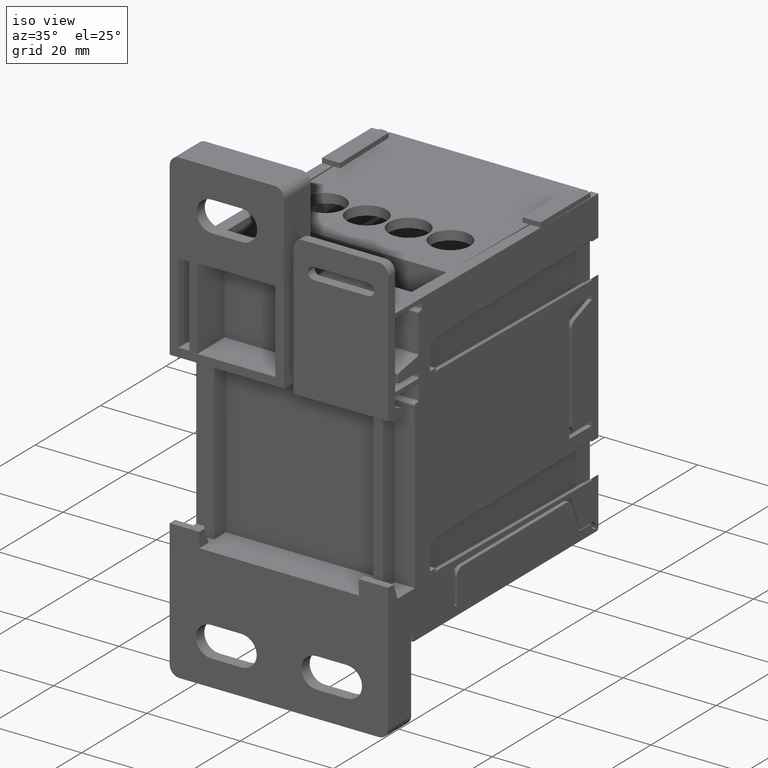
[diagram: clean part render]
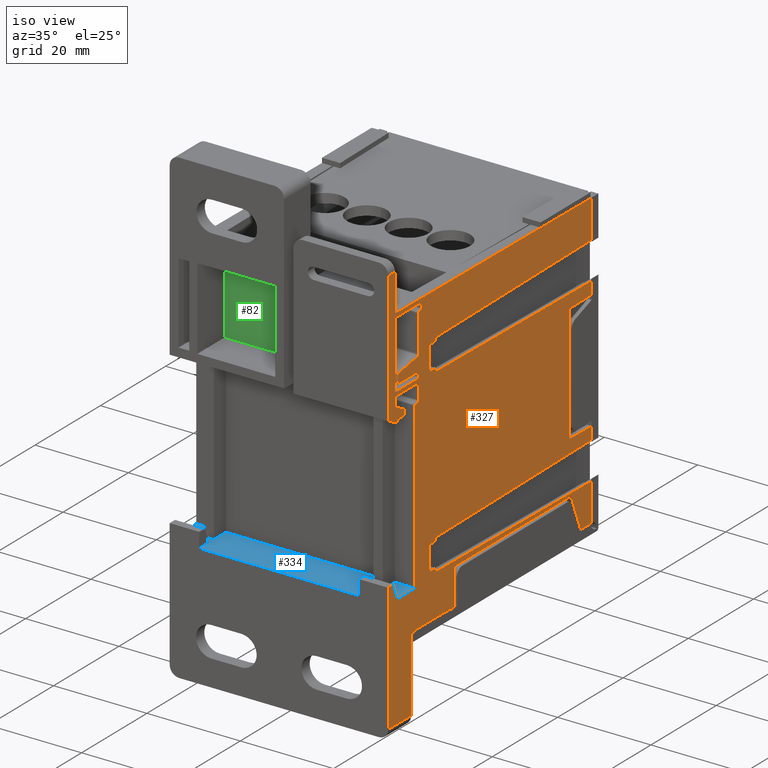
[diagram: same view with three faces highlighted in distinct colors, each labeled with its STEP entity id]
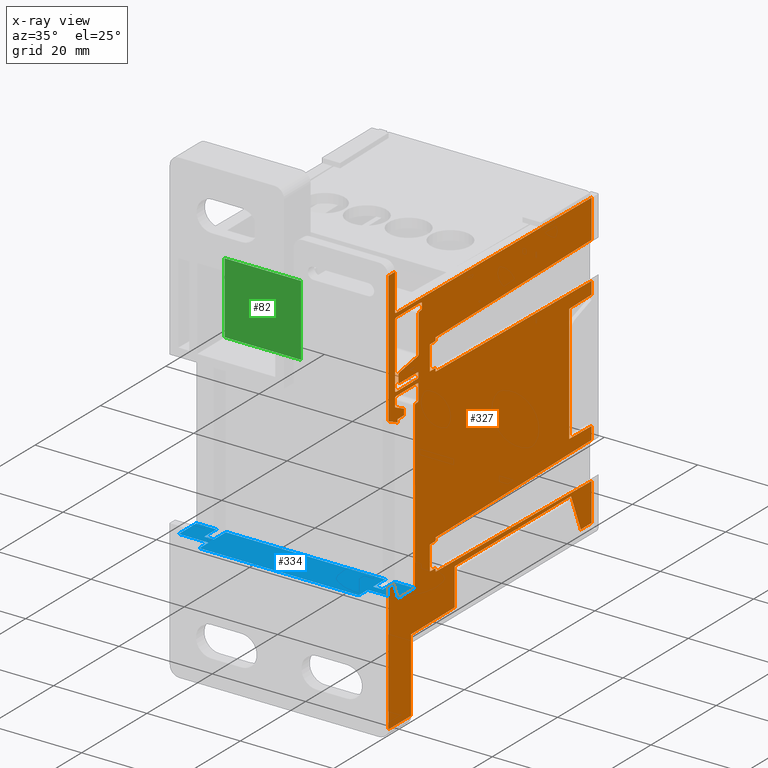
[diagram: x-ray of the same camera — body ghosted, the three highlighted faces saturated]
A machine part, iso view with three faces highlighted in distinct colors.
The next image is the same camera in x-ray (body ghosted, the three faces saturated) — at least one of them is partly hidden behind the body in this view.
Their STEP definitions:

[orange] entity #327 — the highlighted planar face has unit normal (-1, -0, 0).
#327 = ADVANCED_FACE ( 'NONE', ( #2805, #2813 ), #8396, .F. ) ;
#2805 = FACE_OUTER_BOUND ( 'NONE', #27845, .T. ) ;
#2813 = FACE_BOUND ( 'NONE', #27933, .T. ) ;
#3114 = VERTEX_POINT ( 'NONE', #6851 ) ;
#3134 = VERTEX_POINT ( 'NONE', #6863 ) ;
#3163 = VERTEX_POINT ( 'NONE', #6887 ) ;
#3245 = VERTEX_POINT ( 'NONE', #6937 ) ;
#3247 = VERTEX_POINT ( 'NONE', #6939 ) ;
#3278 = VERTEX_POINT ( 'NONE', #6968 ) ;
#3282 = VERTEX_POINT ( 'NONE', #6974 ) ;
#3292 = VERTEX_POINT ( 'NONE', #6987 ) ;
#3293 = VERTEX_POINT ( 'NONE', #6988 ) ;
#3302 = VERTEX_POINT ( 'NONE', #6998 ) ;
#3430 = VERTEX_POINT ( 'NONE', #7124 ) ;
#3455 = VERTEX_POINT ( 'NONE', #7135 ) ;
#3519 = VERTEX_POINT ( 'NONE', #7170 ) ;
#3556 = VERTEX_POINT ( 'NONE', #7175 ) ;
#3569 = VERTEX_POINT ( 'NONE', #7189 ) ;
#3624 = VERTEX_POINT ( 'NONE', #7200 ) ;
#5586 = CIRCLE ( 'NONE', #19459, 0.01499999999999997700 ) ;
#5600 = LINE ( 'NONE', #7349, #5603 ) ;
#5603 = VECTOR ( 'NONE', #7359, 39.37007874015748100 ) ;
#5637 = LINE ( 'NONE', #7478, #5640 ) ;
#5640 = VECTOR ( 'NONE', #7480, 39.37007874015748100 ) ;
#5689 = LINE ( 'NONE', #8253, #5695 ) ;
#5695 = VECTOR ( 'NONE', #8271, 39.37007874015748100 ) ;
#5729 = LINE ( 'NONE', #8359, #5732 ) ;
#5732 = VECTOR ( 'NONE', #8362, 39.37007874015748100 ) ;
#5755 = LINE ( 'NONE', #8418, #5758 ) ;
#5758 = VECTOR ( 'NONE', #8421, 39.37007874015748100 ) ;
#6851 = CARTESIAN_POINT ( 'NONE',  ( 0.9225000000000003200, 0.01499999999999999800, 0.4797358891054180300 ) ) ;
#6863 = CARTESIAN_POINT ( 'NONE',  ( 0.9225000000000001000, -1.070937157631058200E-018, 0.4647358891054181900 ) ) ;
#6887 = CARTESIAN_POINT ( 'NONE',  ( 0.9225000000000002100, 0.04499999999999999800, 0.6950001427891888700 ) ) ;
#6937 = CARTESIAN_POINT ( 'NONE',  ( 0.9224999999999998800, 2.128123941519966600E-018, -0.9235047687359475600 ) ) ;
#6939 = CARTESIAN_POINT ( 'NONE',  ( 0.9225000000000002100, 0.04499999999999999800, 0.8457867497345564800 ) ) ;
#6968 = CARTESIAN_POINT ( 'NONE',  ( 0.9224999999999997600, -0.3199722876330931600, -1.878504768735948200 ) ) ;
#6974 = CARTESIAN_POINT ( 'NONE',  ( 0.9225000000000002100, 0.04499999999999999800, 1.152000393766679000 ) ) ;
#6987 = CARTESIAN_POINT ( 'NONE',  ( 0.9225000000000002100, 0.04499999999999999800, 0.6749998572108107900 ) ) ;
#6988 = CARTESIAN_POINT ( 'NONE',  ( 0.9224999999999998800, -0.2099999999999999900, -0.9235047687359477800 ) ) ;
#6998 = CARTESIAN_POINT ( 'NONE',  ( 0.9224999999999998800, 0.2499999999999998100, -0.6597462181704815100 ) ) ;
#7124 = CARTESIAN_POINT ( 'NONE',  ( 0.9224999999999998800, 0.2499999999999998100, -0.6322708515814153800 ) ) ;
#7135 = CARTESIAN_POINT ( 'NONE',  ( 0.9224999999999998800, -0.3199722876330931600, -0.7985047687359476700 ) ) ;
#7170 = CARTESIAN_POINT ( 'NONE',  ( 0.9225000000000002100, 0.04499999999999999800, 0.6120001427891887900 ) ) ;
#7175 = CARTESIAN_POINT ( 'NONE',  ( 0.9225000000000002100, 0.2499999999999998100, 0.6322708515814156000 ) ) ;
#7189 = CARTESIAN_POINT ( 'NONE',  ( 0.9225000000000002100, 0.2499999999999998100, 0.6597462181704818500 ) ) ;
#7200 = CARTESIAN_POINT ( 'NONE',  ( 0.9225000000000002100, 0.04499999999999999800, 0.4944786304804174000 ) ) ;
#7312 = CARTESIAN_POINT ( 'NONE',  ( 0.9225000000000003200, 0.01499999999999999800, 0.4647358891054180800 ) ) ;
#7313 = DIRECTION ( 'NONE',  ( 1.000000000000000000, 4.486858147202442400E-033, -1.084066664152485400E-016 ) ) ;
#7314 = DIRECTION ( 'NONE',  ( 0.0000000000000000000, 0.0000000000000000000, 1.000000000000000000 ) ) ;
#7349 = CARTESIAN_POINT ( 'NONE',  ( 0.9224999999999998800, 0.04499999999999999800, -1.260000000000000000 ) ) ;
#7359 = DIRECTION ( 'NONE',  ( 1.014677725113413000E-016, -1.831383198500709800E-018, 1.000000000000000000 ) ) ;
#7478 = CARTESIAN_POINT ( 'NONE',  ( 0.9225000000000002100, 0.04499999999999999800, 1.176999999999999800 ) ) ;
#7480 = DIRECTION ( 'NONE',  ( -6.938893903907228400E-018, -2.304399515373206600E-018, 1.000000000000000000 ) ) ;
#8253 = CARTESIAN_POINT ( 'NONE',  ( 0.9225000000000002100, 0.04499999999999999800, 1.176999999999999800 ) ) ;
#8271 = DIRECTION ( 'NONE',  ( -6.938893903907228400E-018, -2.304399515373206600E-018, 1.000000000000000000 ) ) ;
#8359 = CARTESIAN_POINT ( 'NONE',  ( 0.9224999999999998800, 2.128123941519967000E-018, -0.9235047687359477800 ) ) ;
#8362 = DIRECTION ( 'NONE',  ( -7.703719777548943400E-033, -1.000000000000000000, -2.304399515373239000E-018 ) ) ;
#8396 = PLANE ( 'NONE',  #21912 ) ;
#8410 = CARTESIAN_POINT ( 'NONE',  ( 0.9224999999999998800, 0.08000000000000000200, -1.260000000000000000 ) ) ;
#8411 = DIRECTION ( 'NONE',  ( -1.000000000000000000, -4.470868163453052400E-033, 1.014677725113413000E-016 ) ) ;
#8413 = DIRECTION ( 'NONE',  ( 1.014677725113413000E-016, -2.304399515373206600E-018, 1.000000000000000000 ) ) ;
#8418 = CARTESIAN_POINT ( 'NONE',  ( 0.9224999999999998800, 2.903543389370244000E-018, -1.260000000000000000 ) ) ;
#8421 = DIRECTION ( 'NONE',  ( -1.014677725113413000E-016, 2.304399515373206600E-018, -1.000000000000000000 ) ) ;
#11455 = EDGE_CURVE ( 'NONE', #3114, #3134, #5586, .T. ) ;
#11480 = EDGE_CURVE ( 'NONE', #3292, #3163, #5600, .T. ) ;
#11544 = EDGE_CURVE ( 'NONE', #3624, #3519, #5637, .T. ) ;
#11622 = EDGE_CURVE ( 'NONE', #3247, #3282, #5689, .T. ) ;
#11663 = EDGE_CURVE ( 'NONE', #3245, #3293, #5729, .T. ) ;
#11691 = EDGE_CURVE ( 'NONE', #3134, #3245, #5755, .T. ) ;
#12117 = AXIS2_PLACEMENT_3D ( 'NONE', #15950, #15951, #15952 ) ;
#12118 = AXIS2_PLACEMENT_3D ( 'NONE', #16034, #16035, #16036 ) ;
#12976 = LINE ( 'NONE', #14719, #12979 ) ;
#12979 = VECTOR ( 'NONE', #14720, 39.37007874015748100 ) ;
#12983 = LINE ( 'NONE', #14729, #12984 ) ;
#12984 = VECTOR ( 'NONE', #14730, 39.37007874015748900 ) ;
#13470 = LINE ( 'NONE', #15943, #13472 ) ;
#13471 = LINE ( 'NONE', #15945, #13474 ) ;
#13472 = VECTOR ( 'NONE', #15944, 39.37007874015748100 ) ;
#13473 = LINE ( 'NONE', #15947, #13476 ) ;
#13474 = VECTOR ( 'NONE', #15946, 39.37007874015748100 ) ;
#13475 = CIRCLE ( 'NONE', #12117, 0.01499999999999997700 ) ;
#13476 = VECTOR ( 'NONE', #15948, 39.37007874015748900 ) ;
#13477 = LINE ( 'NONE', #15940, #13479 ) ;
#13478 = LINE ( 'NONE', #15953, #13481 ) ;
#13479 = VECTOR ( 'NONE', #15939, 39.37007874015748100 ) ;
#13480 = LINE ( 'NONE', #15955, #13483 ) ;
#13481 = VECTOR ( 'NONE', #15954, 39.37007874015748100 ) ;
#13482 = LINE ( 'NONE', #15966, #13490 ) ;
#13483 = VECTOR ( 'NONE', #15957, 39.37007874015748100 ) ;
#13484 = LINE ( 'NONE', #15970, #13486 ) ;
#13485 = LINE ( 'NONE', #15972, #13488 ) ;
#13486 = VECTOR ( 'NONE', #15971, 39.37007874015748100 ) ;
#13487 = LINE ( 'NONE', #15993, #13500 ) ;
#13488 = VECTOR ( 'NONE', #15974, 39.37007874015748100 ) ;
#13489 = LINE ( 'NONE', #15976, #13492 ) ;
#13490 = VECTOR ( 'NONE', #15975, 39.37007874015748100 ) ;
#13491 = LINE ( 'NONE', #15978, #13494 ) ;
#13492 = VECTOR ( 'NONE', #15977, 39.37007874015748100 ) ;
#13493 = LINE ( 'NONE', #15980, #13495 ) ;
#13494 = VECTOR ( 'NONE', #15979, 39.37007874015748100 ) ;
#13495 = VECTOR ( 'NONE', #15981, 39.37007874015748100 ) ;
#13496 = LINE ( 'NONE', #15990, #13497 ) ;
#13497 = VECTOR ( 'NONE', #15991, 39.37007874015748100 ) ;
#13498 = LINE ( 'NONE', #15994, #13528 ) ;
#13499 = LINE ( 'NONE', #15998, #13502 ) ;
#13500 = VECTOR ( 'NONE', #15997, 39.37007874015748100 ) ;
#13501 = LINE ( 'NONE', #16000, #13504 ) ;
#13502 = VECTOR ( 'NONE', #15999, 39.37007874015748100 ) ;
#13503 = LINE ( 'NONE', #16002, #13506 ) ;
#13504 = VECTOR ( 'NONE', #16001, 39.37007874015748100 ) ;
#13505 = LINE ( 'NONE', #16004, #13508 ) ;
#13506 = VECTOR ( 'NONE', #16003, 39.37007874015748100 ) ;
#13507 = LINE ( 'NONE', #16006, #13510 ) ;
#13508 = VECTOR ( 'NONE', #16005, 39.37007874015748100 ) ;
#13509 = LINE ( 'NONE', #16008, #13512 ) ;
#13510 = VECTOR ( 'NONE', #16007, 39.37007874015748100 ) ;
#13511 = LINE ( 'NONE', #16010, #13514 ) ;
#13512 = VECTOR ( 'NONE', #16009, 39.37007874015748900 ) ;
#13513 = LINE ( 'NONE', #16012, #13516 ) ;
#13514 = VECTOR ( 'NONE', #16011, 39.37007874015748100 ) ;
#13515 = LINE ( 'NONE', #16014, #13518 ) ;
#13516 = VECTOR ( 'NONE', #16013, 39.37007874015748100 ) ;
#13517 = LINE ( 'NONE', #16016, #13520 ) ;
#13518 = VECTOR ( 'NONE', #16015, 39.37007874015748100 ) ;
#13519 = LINE ( 'NONE', #16018, #13522 ) ;
#13520 = VECTOR ( 'NONE', #16017, 39.37007874015748100 ) ;
#13521 = LINE ( 'NONE', #16020, #13524 ) ;
#13522 = VECTOR ( 'NONE', #16019, 39.37007874015748100 ) ;
#13523 = LINE ( 'NONE', #16022, #13526 ) ;
#13524 = VECTOR ( 'NONE', #16021, 39.37007874015748100 ) ;
#13526 = VECTOR ( 'NONE', #16024, 39.37007874015748100 ) ;
#13527 = LINE ( 'NONE', #16026, #13530 ) ;
#13528 = VECTOR ( 'NONE', #16025, 39.37007874015748100 ) ;
#13529 = LINE ( 'NONE', #16028, #13532 ) ;
#13530 = VECTOR ( 'NONE', #16027, 39.37007874015748100 ) ;
#13531 = LINE ( 'NONE', #16030, #13534 ) ;
#13532 = VECTOR ( 'NONE', #16029, 39.37007874015748900 ) ;
#13533 = CIRCLE ( 'NONE', #12118, 0.01499999999999997700 ) ;
#13534 = VECTOR ( 'NONE', #16031, 39.37007874015748100 ) ;
#13535 = LINE ( 'NONE', #16023, #13537 ) ;
#13536 = LINE ( 'NONE', #16037, #13539 ) ;
#13537 = VECTOR ( 'NONE', #15992, 39.37007874015748100 ) ;
#13538 = LINE ( 'NONE', #16039, #13541 ) ;
#13539 = VECTOR ( 'NONE', #16038, 39.37007874015748100 ) ;
#13540 = LINE ( 'NONE', #16041, #13543 ) ;
#13541 = VECTOR ( 'NONE', #16040, 39.37007874015748100 ) ;
#13542 = LINE ( 'NONE', #16043, #13545 ) ;
#13543 = VECTOR ( 'NONE', #16042, 39.37007874015748900 ) ;
#13544 = LINE ( 'NONE', #16045, #13547 ) ;
#13545 = VECTOR ( 'NONE', #16044, 39.37007874015748100 ) ;
#13546 = LINE ( 'NONE', #16047, #13549 ) ;
#13547 = VECTOR ( 'NONE', #16046, 39.37007874015748100 ) ;
#13548 = LINE ( 'NONE', #16049, #13551 ) ;
#13549 = VECTOR ( 'NONE', #16048, 39.37007874015748100 ) ;
#13550 = LINE ( 'NONE', #16051, #13552 ) ;
#13551 = VECTOR ( 'NONE', #16050, 39.37007874015747400 ) ;
#13552 = VECTOR ( 'NONE', #16052, 39.37007874015748100 ) ;
#13553 = LINE ( 'NONE', #16061, #13554 ) ;
#13554 = VECTOR ( 'NONE', #16062, 39.37007874015748100 ) ;
#13555 = LINE ( 'NONE', #16071, #13556 ) ;
#13556 = VECTOR ( 'NONE', #16072, 39.37007874015748100 ) ;
#13557 = LINE ( 'NONE', #16077, #13559 ) ;
#13559 = VECTOR ( 'NONE', #16078, 39.37007874015748100 ) ;
#13757 = LINE ( 'NONE', #16355, #13769 ) ;
#13769 = VECTOR ( 'NONE', #16360, 39.37007874015748100 ) ;
#14200 = CARTESIAN_POINT ( 'NONE',  ( 0.9225000000000001000, -0.2313393563699807100, 0.5422930364954514600 ) ) ;
#14201 = CARTESIAN_POINT ( 'NONE',  ( 0.9225000000000001000, -0.2099999999999999900, 0.4444952312640523300 ) ) ;
#14202 = CARTESIAN_POINT ( 'NONE',  ( 0.9225000000000001000, -0.2099999999999999900, 0.4194952312640523000 ) ) ;
#14203 = CARTESIAN_POINT ( 'NONE',  ( 0.9225000000000001000, -0.3199999999999996700, 0.4707890736611024500 ) ) ;
#14204 = CARTESIAN_POINT ( 'NONE',  ( 0.9225000000000002100, -0.3200000000000000100, 1.580000000000000700 ) ) ;
#14205 = CARTESIAN_POINT ( 'NONE',  ( 0.9225000000000002100, -0.2399999999999999600, 1.580000000000000300 ) ) ;
#14206 = CARTESIAN_POINT ( 'NONE',  ( 0.9224999999999998800, 0.2499999999999998100, -0.8662537818295186200 ) ) ;
#14208 = CARTESIAN_POINT ( 'NONE',  ( 0.9225000000000002100, -0.1999999999999999800, 0.7249998572108109500 ) ) ;
#14209 = CARTESIAN_POINT ( 'NONE',  ( 0.9224999999999998800, 0.2499999999999998100, -0.8937291484185850800 ) ) ;
#14211 = CARTESIAN_POINT ( 'NONE',  ( 0.9225000000000001000, 2.129999999999999900, -0.6067468508082398700 ) ) ;
#14212 = CARTESIAN_POINT ( 'NONE',  ( 0.9225000000000001000, 2.129999999999999900, 0.9192531491917596000 ) ) ;
#14213 = CARTESIAN_POINT ( 'NONE',  ( 0.9224999999999998800, 0.4793017974028711000, -0.9413017974028712300 ) ) ;
#14214 = CARTESIAN_POINT ( 'NONE',  ( 0.9224999999999998800, -0.2554962792832744500, -0.7985047687359476700 ) ) ;
#14215 = CARTESIAN_POINT ( 'NONE',  ( 0.9224999999999998800, -0.04499999999999992200, -1.878504768735948200 ) ) ;
#14216 = CARTESIAN_POINT ( 'NONE',  ( 0.9225000000000001000, 0.01526178609655925700, 0.4797336045327639800 ) ) ;
#14217 = CARTESIAN_POINT ( 'NONE',  ( 0.9225000000000001000, 2.129999999999999900, -0.9192531491917601500 ) ) ;
#14218 = CARTESIAN_POINT ( 'NONE',  ( 0.9225000000000002100, 0.1799999999999998000, 0.8653034200986025000 ) ) ;
#14219 = CARTESIAN_POINT ( 'NONE',  ( 0.9225000000000001000, 2.129999999999999900, 0.5007128675306181700 ) ) ;
#14220 = CARTESIAN_POINT ( 'NONE',  ( 0.9225000000000006500, 1.859999999999999700, 0.4959999999999992700 ) ) ;
#14221 = CARTESIAN_POINT ( 'NONE',  ( 0.9225000000000002100, -0.2399999999999999600, 1.276964116428706700 ) ) ;
#14222 = CARTESIAN_POINT ( 'NONE',  ( 0.9224999999999997600, 1.998141250860344200, -1.240642816404675400 ) ) ;
#14224 = CARTESIAN_POINT ( 'NONE',  ( 0.9225000000000002100, 0.2499999999999998100, 0.8937291484185842000 ) ) ;
#14225 = CARTESIAN_POINT ( 'NONE',  ( 0.9225000000000002100, -0.1999999999999999800, 0.7774136253466965600 ) ) ;
#14226 = CARTESIAN_POINT ( 'NONE',  ( 0.9225000000000002100, 0.03260469786992144900, 0.8310144840740088000 ) ) ;
#14227 = CARTESIAN_POINT ( 'NONE',  ( 0.9225000000000001000, 2.129999999999999900, -0.5007128675306181700 ) ) ;
#14228 = CARTESIAN_POINT ( 'NONE',  ( 0.9225000000000002100, 0.2499999999999998100, 0.8662537818295185100 ) ) ;
#14229 = CARTESIAN_POINT ( 'NONE',  ( 0.9225000000000002100, 0.1799999999999998000, 0.6606965799013979600 ) ) ;
#14230 = CARTESIAN_POINT ( 'NONE',  ( 0.9225000000000002100, 0.03000014278918898200, 0.6599999999999999200 ) ) ;
#14231 = CARTESIAN_POINT ( 'NONE',  ( 0.9225000000000001000, 2.129999999999999900, 0.6067468508082404200 ) ) ;
#14232 = CARTESIAN_POINT ( 'NONE',  ( 0.9224999999999998800, 1.880475755969698300, -0.9413017974028712300 ) ) ;
#14233 = CARTESIAN_POINT ( 'NONE',  ( 0.9224999999999998800, 0.1799999999999998000, -0.6606965799013977400 ) ) ;
#14238 = CARTESIAN_POINT ( 'NONE',  ( 0.9225000000000002100, -0.2251308980324756300, 1.261964687582744400 ) ) ;
#14239 = CARTESIAN_POINT ( 'NONE',  ( 0.9225000000000004300, 1.859999999999999700, -0.4959999999999994400 ) ) ;
#14247 = CARTESIAN_POINT ( 'NONE',  ( 0.9225000000000001000, 0.02973807111289250200, 0.4794809200378845100 ) ) ;
#14250 = CARTESIAN_POINT ( 'NONE',  ( 0.9224999999999998800, 0.1799999999999998000, -0.8653034200986026200 ) ) ;
#14252 = CARTESIAN_POINT ( 'NONE',  ( 0.9225000000000001000, 2.129999999999999900, 1.241411771605683800 ) ) ;
#14269 = CARTESIAN_POINT ( 'NONE',  ( 0.9224999999999998800, -0.04499999999999992900, -1.258473039978779400 ) ) ;
#14272 = CARTESIAN_POINT ( 'NONE',  ( 0.9225000000000001000, 2.129999999999999900, -1.239492102533879000 ) ) ;
#14274 = CARTESIAN_POINT ( 'NONE',  ( 0.9224999999999997600, 0.4793017974028712100, -1.253897527510387200 ) ) ;
#14275 = CARTESIAN_POINT ( 'NONE',  ( 0.9225000000000002100, -0.2250001427891889200, 0.6599999999999999200 ) ) ;
#14298 = CARTESIAN_POINT ( 'NONE',  ( 0.9225000000000002100, 0.07000014278918903500, 1.167000536557227100 ) ) ;
#14299 = CARTESIAN_POINT ( 'NONE',  ( 0.9225000000000002100, -0.1850001427891889700, 0.7099999999999999600 ) ) ;
#14302 = CARTESIAN_POINT ( 'NONE',  ( 0.9225000000000001000, -0.1299999999999999800, 0.4950377185476302900 ) ) ;
#14303 = CARTESIAN_POINT ( 'NONE',  ( 0.9225000000000002100, -0.2399999999999999600, 1.212000679346416200 ) ) ;
#14304 = CARTESIAN_POINT ( 'NONE',  ( 0.9225000000000001000, -0.2250001427891889500, 0.6269999999999997800 ) ) ;
#14305 = CARTESIAN_POINT ( 'NONE',  ( 0.9225000000000002100, 0.03000014278918897900, 0.7099999999999999600 ) ) ;
#14306 = CARTESIAN_POINT ( 'NONE',  ( 0.9225000000000002100, 0.07000014278918903500, 1.227000536557227200 ) ) ;
#14307 = CARTESIAN_POINT ( 'NONE',  ( 0.9225000000000001000, 0.03000014278918897900, 0.6269999999999997800 ) ) ;
#14309 = CARTESIAN_POINT ( 'NONE',  ( 0.9225000000000002100, 0.08500000000000004800, 1.182000393768038100 ) ) ;
#14314 = CARTESIAN_POINT ( 'NONE',  ( 0.9225000000000001000, -0.2399999999999999600, 0.6120001427891887900 ) ) ;
#14326 = CARTESIAN_POINT ( 'NONE',  ( 0.9225000000000002100, 0.05999999999999999800, 1.167000536557227100 ) ) ;
#14329 = CARTESIAN_POINT ( 'NONE',  ( 0.9225000000000002100, -0.2250001427891889500, 1.227000536557227200 ) ) ;
#14344 = CARTESIAN_POINT ( 'NONE',  ( 0.9225000000000002100, -0.2399999999999999600, 0.6749998572108107900 ) ) ;
#14346 = CARTESIAN_POINT ( 'NONE',  ( 0.9225000000000001000, -0.2399999999999999600, 0.5558875238900472500 ) ) ;
#14427 = CARTESIAN_POINT ( 'NONE',  ( 0.9225000000000002100, 0.08500000000000004800, 1.212000679346416200 ) ) ;
#14430 = CARTESIAN_POINT ( 'NONE',  ( 0.9225000000000002100, -0.1876048406591105400, 0.7921856010219792100 ) ) ;
#14434 = CARTESIAN_POINT ( 'NONE',  ( 0.9225000000000001000, -0.1299999999999999800, 0.4444952312640523300 ) ) ;
#14694 = CARTESIAN_POINT ( 'NONE',  ( 0.9225000000000002100, 0.04499999999999999800, 0.8381709645325068300 ) ) ;
#14698 = CARTESIAN_POINT ( 'NONE',  ( 0.9225000000000002100, 0.04499999999999999800, 0.8457867497345564800 ) ) ;
#14704 = CARTESIAN_POINT ( 'NONE',  ( 0.9225000000000002100, 0.04010471078677833200, 0.8323369387069121700 ) ) ;
#14705 = CARTESIAN_POINT ( 'NONE',  ( 0.9225000000000002100, 0.03260469786992144900, 0.8310144840740088000 ) ) ;
#14707 = CARTESIAN_POINT ( 'NONE',  ( 0.9225000000000002100, 0.05121320343559641900, 1.167000536557227100 ) ) ;
#14708 = CARTESIAN_POINT ( 'NONE',  ( 0.9225000000000002100, 0.05999999999999999800, 1.167000536557227100 ) ) ;
#14713 = CARTESIAN_POINT ( 'NONE',  ( 0.9225000000000002100, 0.04499999999999999800, 1.160787273975848900 ) ) ;
#14714 = CARTESIAN_POINT ( 'NONE',  ( 0.9225000000000002100, 0.04499999999999999800, 1.152000393766679000 ) ) ;
#14715 = CARTESIAN_POINT ( 'NONE',  ( 0.9225000000000003200, -0.1951047891165050300, 0.7908631577550178100 ) ) ;
#14716 = CARTESIAN_POINT ( 'NONE',  ( 0.9225000000000002100, -0.1876048406591105400, 0.7921856010219792100 ) ) ;
#14719 = CARTESIAN_POINT ( 'NONE',  ( 0.9225000000000002100, 0.04499999999999999800, 1.167000536557227100 ) ) ;
#14720 = DIRECTION ( 'NONE',  ( 7.703719777548943400E-033, 1.000000000000000000, 2.304399515373239000E-018 ) ) ;
#14727 = CARTESIAN_POINT ( 'NONE',  ( 0.9225000000000003200, -0.1999999999999999300, 0.7850292725981064000 ) ) ;
#14728 = CARTESIAN_POINT ( 'NONE',  ( 0.9225000000000002100, -0.1999999999999999800, 0.7774136253466965600 ) ) ;
#14729 = CARTESIAN_POINT ( 'NONE',  ( 0.9225000000000002100, -0.1999999999999999800, 0.7899999999999999200 ) ) ;
#14730 = DIRECTION ( 'NONE',  ( 1.204926281437680700E-018, -0.9848077530122073500, -0.1736481776669340800 ) ) ;
#15023 = ORIENTED_EDGE ( 'NONE', *, *, #29603, .T. ) ;
#15027 = ORIENTED_EDGE ( 'NONE', *, *, #29595, .F. ) ;
#15044 = ORIENTED_EDGE ( 'NONE', *, *, #29607, .T. ) ;
#15068 = ORIENTED_EDGE ( 'NONE', *, *, #29622, .F. ) ;
#15075 = ORIENTED_EDGE ( 'NONE', *, *, #29848, .T. ) ;
#15076 = ORIENTED_EDGE ( 'NONE', *, *, #29623, .F. ) ;
#15077 = ORIENTED_EDGE ( 'NONE', *, *, #29625, .T. ) ;
#15078 = ORIENTED_EDGE ( 'NONE', *, *, #29624, .T. ) ;
#15079 = ORIENTED_EDGE ( 'NONE', *, *, #29626, .T. ) ;
#15080 = ORIENTED_EDGE ( 'NONE', *, *, #29627, .T. ) ;
#15081 = ORIENTED_EDGE ( 'NONE', *, *, #29929, .T. ) ;
#15082 = ORIENTED_EDGE ( 'NONE', *, *, #29629, .T. ) ;
#15085 = ORIENTED_EDGE ( 'NONE', *, *, #29631, .T. ) ;
#15086 = ORIENTED_EDGE ( 'NONE', *, *, #29633, .T. ) ;
#15087 = ORIENTED_EDGE ( 'NONE', *, *, #29632, .T. ) ;
#15088 = ORIENTED_EDGE ( 'NONE', *, *, #29635, .T. ) ;
#15089 = ORIENTED_EDGE ( 'NONE', *, *, #29636, .T. ) ;
#15090 = ORIENTED_EDGE ( 'NONE', *, *, #29637, .T. ) ;
#15091 = ORIENTED_EDGE ( 'NONE', *, *, #29639, .T. ) ;
#15093 = ORIENTED_EDGE ( 'NONE', *, *, #29640, .T. ) ;
#15094 = ORIENTED_EDGE ( 'NONE', *, *, #29641, .T. ) ;
#15095 = ORIENTED_EDGE ( 'NONE', *, *, #29643, .T. ) ;
#15096 = ORIENTED_EDGE ( 'NONE', *, *, #29642, .T. ) ;
#15097 = ORIENTED_EDGE ( 'NONE', *, *, #29596, .T. ) ;
#15098 = ORIENTED_EDGE ( 'NONE', *, *, #29606, .T. ) ;
#15099 = ORIENTED_EDGE ( 'NONE', *, *, #11480, .F. ) ;
#15100 = ORIENTED_EDGE ( 'NONE', *, *, #29605, .T. ) ;
#15101 = ORIENTED_EDGE ( 'NONE', *, *, #29589, .T. ) ;
#15102 = ORIENTED_EDGE ( 'NONE', *, *, #29588, .T. ) ;
#15103 = ORIENTED_EDGE ( 'NONE', *, *, #29609, .T. ) ;
#15104 = ORIENTED_EDGE ( 'NONE', *, *, #29598, .T. ) ;
#15105 = ORIENTED_EDGE ( 'NONE', *, *, #29599, .F. ) ;
#15106 = ORIENTED_EDGE ( 'NONE', *, *, #29597, .T. ) ;
#15107 = ORIENTED_EDGE ( 'NONE', *, *, #26322, .F. ) ;
#15108 = ORIENTED_EDGE ( 'NONE', *, *, #26320, .T. ) ;
#15109 = ORIENTED_EDGE ( 'NONE', *, *, #11622, .F. ) ;
#15110 = ORIENTED_EDGE ( 'NONE', *, *, #26317, .T. ) ;
#15111 = ORIENTED_EDGE ( 'NONE', *, *, #26326, .T. ) ;
#15112 = ORIENTED_EDGE ( 'NONE', *, *, #26325, .T. ) ;
#15158 = ORIENTED_EDGE ( 'NONE', *, *, #29620, .T. ) ;
#15159 = ORIENTED_EDGE ( 'NONE', *, *, #29638, .T. ) ;
#15160 = ORIENTED_EDGE ( 'NONE', *, *, #29634, .T. ) ;
#15161 = ORIENTED_EDGE ( 'NONE', *, *, #29630, .T. ) ;
#15162 = ORIENTED_EDGE ( 'NONE', *, *, #29628, .T. ) ;
#15163 = ORIENTED_EDGE ( 'NONE', *, *, #29621, .F. ) ;
#15165 = ORIENTED_EDGE ( 'NONE', *, *, #29619, .T. ) ;
#15166 = ORIENTED_EDGE ( 'NONE', *, *, #29604, .T. ) ;
#15167 = ORIENTED_EDGE ( 'NONE', *, *, #29644, .T. ) ;
#15168 = ORIENTED_EDGE ( 'NONE', *, *, #11544, .F. ) ;
#15169 = ORIENTED_EDGE ( 'NONE', *, *, #30000, .F. ) ;
#15171 = ORIENTED_EDGE ( 'NONE', *, *, #29601, .F. ) ;
#15233 = ORIENTED_EDGE ( 'NONE', *, *, #29616, .F. ) ;
#15235 = ORIENTED_EDGE ( 'NONE', *, *, #29600, .F. ) ;
#15236 = ORIENTED_EDGE ( 'NONE', *, *, #29610, .T. ) ;
#15237 = ORIENTED_EDGE ( 'NONE', *, *, #29611, .F. ) ;
#15240 = ORIENTED_EDGE ( 'NONE', *, *, #29594, .T. ) ;
#15241 = ORIENTED_EDGE ( 'NONE', *, *, #29767, .T. ) ;
#15242 = ORIENTED_EDGE ( 'NONE', *, *, #29590, .T. ) ;
#15243 = ORIENTED_EDGE ( 'NONE', *, *, #29591, .T. ) ;
#15244 = ORIENTED_EDGE ( 'NONE', *, *, #30004, .F. ) ;
#15245 = ORIENTED_EDGE ( 'NONE', *, *, #29593, .T. ) ;
#15247 = ORIENTED_EDGE ( 'NONE', *, *, #29612, .F. ) ;
#15248 = ORIENTED_EDGE ( 'NONE', *, *, #29613, .F. ) ;
#15249 = ORIENTED_EDGE ( 'NONE', *, *, #29842, .T. ) ;
#15250 = ORIENTED_EDGE ( 'NONE', *, *, #29615, .T. ) ;
#15251 = ORIENTED_EDGE ( 'NONE', *, *, #29614, .T. ) ;
#15252 = ORIENTED_EDGE ( 'NONE', *, *, #29617, .F. ) ;
#15253 = ORIENTED_EDGE ( 'NONE', *, *, #29618, .T. ) ;
#15922 = CARTESIAN_POINT ( 'NONE',  ( 0.9225000000000002100, -0.2399999999999999100, 1.220787426912463700 ) ) ;
#15932 = CARTESIAN_POINT ( 'NONE',  ( 0.9225000000000002100, -0.2399999999999999600, 1.212000679346416200 ) ) ;
#15939 = DIRECTION ( 'NONE',  ( -6.938893903907228400E-018, -2.304399515373206600E-018, 1.000000000000000000 ) ) ;
#15940 = CARTESIAN_POINT ( 'NONE',  ( 0.9224999999999998800, -0.04499999999999992900, -1.260000000000000000 ) ) ;
#15941 = CARTESIAN_POINT ( 'NONE',  ( 0.9225000000000002100, -0.2337868903552363400, 1.227000536557227200 ) ) ;
#15942 = CARTESIAN_POINT ( 'NONE',  ( 0.9225000000000002100, -0.2250001427891889500, 1.227000536557227200 ) ) ;
#15943 = CARTESIAN_POINT ( 'NONE',  ( 0.9225000000000002100, -0.2399999999999999600, 1.227000536557227200 ) ) ;
#15944 = DIRECTION ( 'NONE',  ( -6.938893903907228400E-018, -2.304399515373206600E-018, 1.000000000000000000 ) ) ;
#15945 = CARTESIAN_POINT ( 'NONE',  ( 0.9224999999999998800, -0.2554962792832744500, -0.7985047687359476700 ) ) ;
#15946 = DIRECTION ( 'NONE',  ( -7.703719777548943400E-033, -1.000000000000000000, -2.304399515373239000E-018 ) ) ;
#15947 = CARTESIAN_POINT ( 'NONE',  ( 0.9224999999999998800, -0.2099999999999999900, -0.9235047687359477800 ) ) ;
#15948 = DIRECTION ( 'NONE',  ( -6.520427397917961500E-018, -0.3420201433256632200, 0.9396926207859103200 ) ) ;
#15949 = CARTESIAN_POINT ( 'NONE',  ( 0.9225000000000002100, 0.03878689035523633100, 0.7099999999999998500 ) ) ;
#15950 = CARTESIAN_POINT ( 'NONE',  ( 0.9225000000000003200, 0.01499999999999999800, 0.4647358891054180800 ) ) ;
#15951 = DIRECTION ( 'NONE',  ( 1.000000000000000000, 4.486858147202442400E-033, -1.084066664152485400E-016 ) ) ;
#15952 = DIRECTION ( 'NONE',  ( 0.0000000000000000000, -1.225063084658820000E-013, 1.000000000000000000 ) ) ;
#15953 = CARTESIAN_POINT ( 'NONE',  ( 0.9224999999999998800, -0.04499999999999992200, -1.878504768735948200 ) ) ;
#15954 = DIRECTION ( 'NONE',  ( 7.703719777548943400E-033, 1.000000000000000000, 2.304399515373239000E-018 ) ) ;
#15955 = CARTESIAN_POINT ( 'NONE',  ( 0.9224999999999998800, 0.4793017974028711000, -0.9419999999999999500 ) ) ;
#15956 = CARTESIAN_POINT ( 'NONE',  ( 0.9225000000000002100, 0.03000014278918897900, 0.7099999999999999600 ) ) ;
#15957 = DIRECTION ( 'NONE',  ( -1.014677725113413200E-016, 4.196644916302998900E-018, -1.000000000000000000 ) ) ;
#15958 = CARTESIAN_POINT ( 'NONE',  ( 0.9225000000000002100, 0.08500000000000004800, 1.182000393768038100 ) ) ;
#15959 = CARTESIAN_POINT ( 'NONE',  ( 0.9225000000000002100, 0.08500000000000004800, 1.173213646201990900 ) ) ;
#15960 = CARTESIAN_POINT ( 'NONE',  ( 0.9225000000000002100, 0.04499999999999999800, 0.7037868903552362300 ) ) ;
#15961 = CARTESIAN_POINT ( 'NONE',  ( 0.9225000000000002100, 0.04499999999999999800, 0.6950001427891888700 ) ) ;
#15962 = CARTESIAN_POINT ( 'NONE',  ( 0.9225000000000002100, 0.07878689035523638000, 1.227000536557227200 ) ) ;
#15963 = CARTESIAN_POINT ( 'NONE',  ( 0.9225000000000002100, 0.07000014278918903500, 1.227000536557227200 ) ) ;
#15964 = CARTESIAN_POINT ( 'NONE',  ( 0.9225000000000002100, 0.07878689035523638000, 1.167000536557227100 ) ) ;
#15965 = CARTESIAN_POINT ( 'NONE',  ( 0.9225000000000002100, 0.07000014278918903500, 1.167000536557227100 ) ) ;
#15966 = CARTESIAN_POINT ( 'NONE',  ( 0.9224999999999998800, 0.08000000000000000200, -0.9413017974028712300 ) ) ;
#15967 = CARTESIAN_POINT ( 'NONE',  ( 0.9225000000000003200, -0.2337868903552362000, 0.6599999999999999200 ) ) ;
#15968 = CARTESIAN_POINT ( 'NONE',  ( 0.9225000000000002100, 0.08500000000000004800, 1.220787426912463700 ) ) ;
#15969 = CARTESIAN_POINT ( 'NONE',  ( 0.9225000000000002100, 0.08500000000000004800, 1.212000679346416200 ) ) ;
#15970 = CARTESIAN_POINT ( 'NONE',  ( 0.9225000000000002100, 0.08500000000000004800, 1.227000536557227200 ) ) ;
#15971 = DIRECTION ( 'NONE',  ( -6.938893903907228400E-018, -2.304399515373206600E-018, 1.000000000000000000 ) ) ;
#15972 = CARTESIAN_POINT ( 'NONE',  ( 0.9224999999999998800, 1.880649803423718000, -0.9417445741258968500 ) ) ;
#15973 = CARTESIAN_POINT ( 'NONE',  ( 0.9225000000000002100, -0.2250001427891889200, 0.6599999999999999200 ) ) ;
#15974 = DIRECTION ( 'NONE',  ( 9.443406003655825200E-017, -0.3658334631717170000, 0.9306803303088487800 ) ) ;
#15975 = DIRECTION ( 'NONE',  ( -7.703719777548943400E-033, -1.000000000000000000, -2.304399515373239000E-018 ) ) ;
#15976 = CARTESIAN_POINT ( 'NONE',  ( 0.9225000000000001000, -1.415792769590223800E-018, 0.4799999999999999800 ) ) ;
#15977 = DIRECTION ( 'NONE',  ( -1.770856806153737600E-018, 0.9998476951563912700, -0.01745240643728344200 ) ) ;
#15978 = CARTESIAN_POINT ( 'NONE',  ( 0.9225000000000001000, 2.129999999999999900, -3.313025625656987200 ) ) ;
#15979 = DIRECTION ( 'NONE',  ( -6.938893903907228400E-018, -2.304399515373206600E-018, 1.000000000000000000 ) ) ;
#15980 = CARTESIAN_POINT ( 'NONE',  ( 0.9225000000000002100, 0.04499999999999999800, 0.6599999999999999200 ) ) ;
#15981 = DIRECTION ( 'NONE',  ( -7.703719777548943400E-033, -1.000000000000000000, -2.304399515373239000E-018 ) ) ;
#15982 = CARTESIAN_POINT ( 'NONE',  ( 0.9225000000000002100, 0.04499999999999993600, 0.6662131096447634300 ) ) ;
#15983 = CARTESIAN_POINT ( 'NONE',  ( 0.9225000000000002100, 0.04499999999999999800, 0.6749998572108107900 ) ) ;
#15984 = CARTESIAN_POINT ( 'NONE',  ( 0.9225000000000003200, -0.2399999999999999100, 0.6662131096447635500 ) ) ;
#15985 = CARTESIAN_POINT ( 'NONE',  ( 0.9225000000000002100, -0.2399999999999999600, 0.6749998572108107900 ) ) ;
#15988 = CARTESIAN_POINT ( 'NONE',  ( 0.9225000000000002100, 0.03878689035523628200, 0.6599999999999999200 ) ) ;
#15989 = CARTESIAN_POINT ( 'NONE',  ( 0.9225000000000002100, 0.03000014278918898200, 0.6599999999999999200 ) ) ;
#15990 = CARTESIAN_POINT ( 'NONE',  ( 0.9224999999999998800, 0.08500312431365374100, -0.8914890524703990000 ) ) ;
#15991 = DIRECTION ( 'NONE',  ( 1.377460026633494400E-018, -0.9999078507571987900, 0.01357534508288865300 ) ) ;
#15992 = DIRECTION ( 'NONE',  ( -6.938893903907228400E-018, -2.304399515373206600E-018, 1.000000000000000000 ) ) ;
#15993 = CARTESIAN_POINT ( 'NONE',  ( 0.9225000000000002100, 0.1198653825523722000, 1.227000536557227200 ) ) ;
#15994 = CARTESIAN_POINT ( 'NONE',  ( 0.9225000000000002100, 0.2499999999999998100, 0.8662537818295185100 ) ) ;
#15997 = DIRECTION ( 'NONE',  ( 5.069956666577936600E-033, 1.000000000000000000, 3.818696656002111700E-016 ) ) ;
#15998 = CARTESIAN_POINT ( 'NONE',  ( 0.9224999999999998800, 0.2499999999999998100, -1.260000000000000000 ) ) ;
#15999 = DIRECTION ( 'NONE',  ( 1.014677725113413200E-016, -2.304399515373206600E-018, 1.000000000000000000 ) ) ;
#16000 = CARTESIAN_POINT ( 'NONE',  ( 0.9224999999999998800, 0.2499999999999998100, -0.8662537818295186200 ) ) ;
#16001 = DIRECTION ( 'NONE',  ( 9.419787923909645100E-020, 0.9999078507571987900, -0.01357534508288803100 ) ) ;
#16002 = CARTESIAN_POINT ( 'NONE',  ( 0.9224999999999998800, 0.1799999999999998000, -0.6606965799013977400 ) ) ;
#16003 = DIRECTION ( 'NONE',  ( 6.938893903907228400E-018, 2.304399515373206600E-018, -1.000000000000000000 ) ) ;
#16004 = CARTESIAN_POINT ( 'NONE',  ( 0.9224999999999998800, 0.2499999999999998100, -0.6597462181704815100 ) ) ;
#16005 = DIRECTION ( 'NONE',  ( 9.419787923909457300E-020, -0.9999078507571987900, -0.01357534508288998600 ) ) ;
#16006 = CARTESIAN_POINT ( 'NONE',  ( 0.9225000000000001000, 2.129999999999999900, -3.313025625656987200 ) ) ;
#16007 = DIRECTION ( 'NONE',  ( -6.938893903907228400E-018, -2.304399515373206600E-018, 1.000000000000000000 ) ) ;
#16008 = CARTESIAN_POINT ( 'NONE',  ( 0.9224999999999998800, 0.07151047475328595200, -0.6346941317837562200 ) ) ;
#16009 = DIRECTION ( 'NONE',  ( 1.377460026633511400E-018, 0.9999078507571987900, 0.01357534508288867400 ) ) ;
#16010 = CARTESIAN_POINT ( 'NONE',  ( 0.9225000000000004300, 1.859999999999999700, -0.4959999999999994400 ) ) ;
#16011 = DIRECTION ( 'NONE',  ( -1.307550573896546100E-016, 2.304399515373206600E-018, -1.000000000000000000 ) ) ;
#16012 = CARTESIAN_POINT ( 'NONE',  ( 0.9224999999999997600, 1.859999999999999700, -0.4959999999999994400 ) ) ;
#16013 = DIRECTION ( 'NONE',  ( -1.770856806153748000E-018, 0.9998476951563912700, -0.01745240643728354600 ) ) ;
#16014 = CARTESIAN_POINT ( 'NONE',  ( 0.9225000000000001000, 0.04990040584820890100, 0.4644045940575396400 ) ) ;
#16015 = DIRECTION ( 'NONE',  ( 1.770856806153763400E-018, 0.9998476951563912700, 0.01745240643728355300 ) ) ;
#16016 = CARTESIAN_POINT ( 'NONE',  ( 0.9225000000000001000, 2.129999999999999900, -3.313025625656987200 ) ) ;
#16017 = DIRECTION ( 'NONE',  ( -6.938893903907228400E-018, -2.304399515373206600E-018, 1.000000000000000000 ) ) ;
#16018 = CARTESIAN_POINT ( 'NONE',  ( 0.9225000000000002100, 0.1057171919485846400, 0.6342297209985751100 ) ) ;
#16019 = DIRECTION ( 'NONE',  ( 1.377460026633496700E-018, -0.9999078507571987900, 0.01357534508288867600 ) ) ;
#16020 = CARTESIAN_POINT ( 'NONE',  ( 0.9225000000000002100, 0.1799999999999998000, 0.8653034200986025000 ) ) ;
#16021 = DIRECTION ( 'NONE',  ( 6.938893903907228400E-018, 2.304399515373206600E-018, -1.000000000000000000 ) ) ;
#16022 = CARTESIAN_POINT ( 'NONE',  ( 0.9225000000000002100, 0.2499999999999998100, 0.6597462181704818500 ) ) ;
#16023 = CARTESIAN_POINT ( 'NONE',  ( 0.9225000000000002100, -0.2399999999999999600, 1.660000000000000100 ) ) ;
#16024 = DIRECTION ( 'NONE',  ( 9.419787923910998100E-020, 0.9999078507571987900, -0.01357534508288998200 ) ) ;
#16025 = DIRECTION ( 'NONE',  ( 9.419787923908103200E-020, -0.9999078507571987900, -0.01357534508288803600 ) ) ;
#16026 = CARTESIAN_POINT ( 'NONE',  ( 0.9225000000000002100, 0.2499999999999998100, 0.9700000000000000800 ) ) ;
#16027 = DIRECTION ( 'NONE',  ( 1.014677725113413000E-016, -2.304399515373206600E-018, 1.000000000000000000 ) ) ;
#16028 = CARTESIAN_POINT ( 'NONE',  ( 0.9225000000000002100, 0.05079640711835514700, 0.8910246416852166700 ) ) ;
#16029 = DIRECTION ( 'NONE',  ( 1.377460026633509200E-018, 0.9999078507571987900, 0.01357534508288865200 ) ) ;
#16030 = CARTESIAN_POINT ( 'NONE',  ( 0.9225000000000001000, 2.129999999999999900, -3.313025625656987200 ) ) ;
#16031 = DIRECTION ( 'NONE',  ( -6.938893903907228400E-018, -2.304399515373206600E-018, 1.000000000000000000 ) ) ;
#16032 = CARTESIAN_POINT ( 'NONE',  ( 0.9225000000000001000, -0.2313393563699807100, 0.5422930364954514600 ) ) ;
#16033 = CARTESIAN_POINT ( 'NONE',  ( 0.9224999999999997600, -0.2367765826369459000, 0.5448284567428588500 ) ) ;
#16034 = CARTESIAN_POINT ( 'NONE',  ( 0.9225000000000002100, -0.2249999999999999500, 1.276964116428706700 ) ) ;
#16035 = DIRECTION ( 'NONE',  ( -1.000000000000000000, -4.486858147202442400E-033, 1.084066664152485400E-016 ) ) ;
#16036 = DIRECTION ( 'NONE',  ( 0.0000000000000000000, 0.0000000000000000000, 1.000000000000000000 ) ) ;
#16037 = CARTESIAN_POINT ( 'NONE',  ( 0.9225000000000002100, -0.3200000000000002800, 1.580000000000000700 ) ) ;
#16038 = DIRECTION ( 'NONE',  ( 3.387894436683128700E-031, -1.000000000000000000, 3.412505592564953900E-015 ) ) ;
#16039 = CARTESIAN_POINT ( 'NONE',  ( 0.9225000000000002100, -0.3200000000000000100, 1.660000000000000400 ) ) ;
#16040 = DIRECTION ( 'NONE',  ( -1.079207972223139600E-016, 2.894536273309261400E-016, -1.000000000000000000 ) ) ;
#16041 = CARTESIAN_POINT ( 'NONE',  ( 0.9225000000000001000, -0.2099999999999999900, 0.4194952312640523000 ) ) ;
#16042 = DIRECTION ( 'NONE',  ( 2.932503280072437700E-018, 0.9063077870366484900, -0.4226182617407025500 ) ) ;
#16043 = CARTESIAN_POINT ( 'NONE',  ( 0.9225000000000001000, -0.2099999999999999900, 0.4444952312640523300 ) ) ;
#16044 = DIRECTION ( 'NONE',  ( -6.938893903907228400E-018, -2.304399515373206600E-018, 1.000000000000000000 ) ) ;
#16045 = CARTESIAN_POINT ( 'NONE',  ( 0.9225000000000001000, -0.1299999999999999800, 0.4444952312640523300 ) ) ;
#16046 = DIRECTION ( 'NONE',  ( 7.703719777548943400E-033, 1.000000000000000000, 2.304399515373239000E-018 ) ) ;
#16047 = CARTESIAN_POINT ( 'NONE',  ( 0.9225000000000001000, -0.1299999999999999800, 0.4444952312640523300 ) ) ;
#16048 = DIRECTION ( 'NONE',  ( -6.938893903907228400E-018, -2.304399515373206600E-018, 1.000000000000000000 ) ) ;
#16049 = CARTESIAN_POINT ( 'NONE',  ( 0.9225000000000001000, -0.1299999999999999800, 0.4950377185476302900 ) ) ;
#16050 = DIRECTION ( 'NONE',  ( -2.932503280072446500E-018, -0.9063077870366479400, 0.4226182617407038800 ) ) ;
#16051 = CARTESIAN_POINT ( 'NONE',  ( 0.9225000000000001000, -0.2399999999999999600, 0.6269999999999997800 ) ) ;
#16052 = DIRECTION ( 'NONE',  ( -6.938893903907228400E-018, -2.304399515373206600E-018, 1.000000000000000000 ) ) ;
#16053 = CARTESIAN_POINT ( 'NONE',  ( 0.9225000000000002100, -0.2399999999999999400, 0.6207868903552361500 ) ) ;
#16054 = CARTESIAN_POINT ( 'NONE',  ( 0.9225000000000001000, -0.2399999999999999600, 0.6120001427891887900 ) ) ;
#16055 = CARTESIAN_POINT ( 'NONE',  ( 0.9224999999999997600, -0.2399999999999999400, 0.5498882084866748600 ) ) ;
#16056 = CARTESIAN_POINT ( 'NONE',  ( 0.9225000000000001000, -0.2399999999999999600, 0.5558875238900472500 ) ) ;
#16057 = CARTESIAN_POINT ( 'NONE',  ( 0.9225000000000001000, 0.03878689035523630300, 0.6269999999999997800 ) ) ;
#16058 = CARTESIAN_POINT ( 'NONE',  ( 0.9225000000000001000, 0.03000014278918897900, 0.6269999999999997800 ) ) ;
#16059 = CARTESIAN_POINT ( 'NONE',  ( 0.9225000000000002100, -0.2337868903552363100, 0.6269999999999997800 ) ) ;
#16060 = CARTESIAN_POINT ( 'NONE',  ( 0.9225000000000001000, -0.2250001427891889500, 0.6269999999999997800 ) ) ;
#16061 = CARTESIAN_POINT ( 'NONE',  ( 0.9225000000000001000, 0.04499999999999999800, 0.6269999999999997800 ) ) ;
#16062 = DIRECTION ( 'NONE',  ( 7.703719777548943400E-033, 1.000000000000000000, 2.304399515373239000E-018 ) ) ;
#16063 = CARTESIAN_POINT ( 'NONE',  ( 0.9225000000000001000, 0.04499999999999996400, 0.4855697514459986200 ) ) ;
#16064 = CARTESIAN_POINT ( 'NONE',  ( 0.9225000000000002100, 0.04499999999999999800, 0.4944786304804174000 ) ) ;
#16065 = CARTESIAN_POINT ( 'NONE',  ( 0.9225000000000001000, 0.04499999999999996400, 0.6207868903552361500 ) ) ;
#16066 = CARTESIAN_POINT ( 'NONE',  ( 0.9225000000000002100, 0.04499999999999999800, 0.6120001427891887900 ) ) ;
#16067 = CARTESIAN_POINT ( 'NONE',  ( 0.9225000000000002100, -0.1999999999999999300, 0.7162131096447637000 ) ) ;
#16068 = CARTESIAN_POINT ( 'NONE',  ( 0.9225000000000002100, -0.1999999999999999800, 0.7249998572108109500 ) ) ;
#16069 = CARTESIAN_POINT ( 'NONE',  ( 0.9225000000000001000, 0.03864567807588150500, 0.4793254371799903800 ) ) ;
#16070 = CARTESIAN_POINT ( 'NONE',  ( 0.9225000000000001000, 0.02973807111289250200, 0.4794809200378845100 ) ) ;
#16071 = CARTESIAN_POINT ( 'NONE',  ( 0.9225000000000002100, -0.1999999999999999800, 0.7099999999999999600 ) ) ;
#16072 = DIRECTION ( 'NONE',  ( 6.938893903907228400E-018, 2.304399515373206600E-018, -1.000000000000000000 ) ) ;
#16075 = CARTESIAN_POINT ( 'NONE',  ( 0.9225000000000002100, -0.1937868903552362200, 0.7100000000000000800 ) ) ;
#16076 = CARTESIAN_POINT ( 'NONE',  ( 0.9225000000000002100, -0.1850001427891889700, 0.7099999999999999600 ) ) ;
#16077 = CARTESIAN_POINT ( 'NONE',  ( 0.9225000000000002100, 0.04500000000000006100, 0.7099999999999999600 ) ) ;
#16078 = DIRECTION ( 'NONE',  ( 7.703719777548943400E-033, 1.000000000000000000, 2.304399515373239000E-018 ) ) ;
#16355 = CARTESIAN_POINT ( 'NONE',  ( 0.9224999999999998800, -0.3199722876330931600, -0.7985047687359476700 ) ) ;
#16360 = DIRECTION ( 'NONE',  ( -1.108131747885178700E-016, 2.304399515373206600E-018, -1.000000000000000000 ) ) ;
#16532 = CARTESIAN_POINT ( 'NONE',  ( 0.9224999999999998800, 0.2499999999999998100, -1.260000000000000000 ) ) ;
#16533 = DIRECTION ( 'NONE',  ( 1.014677725113413200E-016, -2.304399515373206600E-018, 1.000000000000000000 ) ) ;
#16546 = CARTESIAN_POINT ( 'NONE',  ( 0.9225000000000002100, 0.2499999999999998100, 0.9700000000000000800 ) ) ;
#16547 = DIRECTION ( 'NONE',  ( 1.014677725113413000E-016, -2.304399515373206600E-018, 1.000000000000000000 ) ) ;
#16732 = ORIENTED_EDGE ( 'NONE', *, *, #11663, .T. ) ;
#16734 = ORIENTED_EDGE ( 'NONE', *, *, #11691, .T. ) ;
#16850 = ORIENTED_EDGE ( 'NONE', *, *, #29592, .T. ) ;
#16866 = CARTESIAN_POINT ( 'NONE',  ( 0.9225000000000002100, 0.1019839399172329400, 1.259109999639561800 ) ) ;
#16869 = DIRECTION ( 'NONE',  ( 8.854621187611450700E-019, -0.9999619230641712000, 0.008726535498373952000 ) ) ;
#17167 = CARTESIAN_POINT ( 'NONE',  ( 0.9224999999999997600, -0.2199722876330930400, -1.260000000000000000 ) ) ;
#17168 = DIRECTION ( 'NONE',  ( -8.854621187611604800E-019, -0.9999619230641712000, -0.008726535498373955500 ) ) ;
#17175 = CARTESIAN_POINT ( 'NONE',  ( 0.9224999999999997600, -0.2199722876330930400, -1.260000000000000000 ) ) ;
#17176 = DIRECTION ( 'NONE',  ( -8.854621187611604800E-019, -0.9999619230641712000, -0.008726535498373955500 ) ) ;
#17663 = LINE ( 'NONE', #16532, #17665 ) ;
#17665 = VECTOR ( 'NONE', #16533, 39.37007874015748100 ) ;
#17672 = LINE ( 'NONE', #16546, #17674 ) ;
#17674 = VECTOR ( 'NONE', #16547, 39.37007874015748100 ) ;
#17820 = LINE ( 'NONE', #16866, #17822 ) ;
#17822 = VECTOR ( 'NONE', #16869, 39.37007874015748100 ) ;
#17951 = LINE ( 'NONE', #17167, #17954 ) ;
#17954 = VECTOR ( 'NONE', #17168, 39.37007874015748100 ) ;
#17959 = LINE ( 'NONE', #17175, #17962 ) ;
#17962 = VECTOR ( 'NONE', #17176, 39.37007874015748100 ) ;
#19459 = AXIS2_PLACEMENT_3D ( 'NONE', #7312, #7313, #7314 ) ;
#21912 = AXIS2_PLACEMENT_3D ( 'NONE', #8410, #8411, #8413 ) ;
#23937 =( BOUNDED_CURVE ( )  B_SPLINE_CURVE ( 3, ( #14698, #14694, #14704, #14705 ),
 .UNSPECIFIED., .F., .F. ) 
 B_SPLINE_CURVE_WITH_KNOTS ( ( 4, 4 ),
 ( 1.570796326794896600, 2.967061406895885600 ),
 .UNSPECIFIED. ) 
 CURVE ( )  GEOMETRIC_REPRESENTATION_ITEM ( )  RATIONAL_B_SPLINE_CURVE ( ( 1.000000000000000000, 0.8440292691049539100, 0.8440292691049539100, 1.000000000000000000 ) ) 
 REPRESENTATION_ITEM ( '' )  );
#23939 =( BOUNDED_CURVE ( )  B_SPLINE_CURVE ( 3, ( #14708, #14707, #14713, #14714 ),
 .UNSPECIFIED., .F., .F. ) 
 B_SPLINE_CURVE_WITH_KNOTS ( ( 4, 4 ),
 ( 3.141592653589793100, 4.712388980384689700 ),
 .UNSPECIFIED. ) 
 CURVE ( )  GEOMETRIC_REPRESENTATION_ITEM ( )  RATIONAL_B_SPLINE_CURVE ( ( 1.000000000000000000, 0.8047378541243649400, 0.8047378541243649400, 1.000000000000000000 ) ) 
 REPRESENTATION_ITEM ( '' )  );
#23941 =( BOUNDED_CURVE ( )  B_SPLINE_CURVE ( 3, ( #14716, #14715, #14727, #14728 ),
 .UNSPECIFIED., .F., .F. ) 
 B_SPLINE_CURVE_WITH_KNOTS ( ( 4, 4 ),
 ( 2.443468940389016200, 3.839716366790567800 ),
 .UNSPECIFIED. ) 
 CURVE ( )  GEOMETRIC_REPRESENTATION_ITEM ( )  RATIONAL_B_SPLINE_CURVE ( ( 1.000000000000000000, 0.8440330516152633200, 0.8440330516152633200, 1.000000000000000000 ) ) 
 REPRESENTATION_ITEM ( '' )  );
#23952 =( BOUNDED_CURVE ( )  B_SPLINE_CURVE ( 3, ( #15932, #15922, #15941, #15942 ),
 .UNSPECIFIED., .F., .F. ) 
 B_SPLINE_CURVE_WITH_KNOTS ( ( 4, 4 ),
 ( 2.356204009426311300, 3.926981297753284700 ),
 .UNSPECIFIED. ) 
 CURVE ( )  GEOMETRIC_REPRESENTATION_ITEM ( )  RATIONAL_B_SPLINE_CURVE ( ( 1.000000000000000000, 0.8047423415129305600, 0.8047423415129305600, 1.000000000000000000 ) ) 
 REPRESENTATION_ITEM ( '' )  );
#23953 =( BOUNDED_CURVE ( )  B_SPLINE_CURVE ( 3, ( #15956, #15949, #15960, #15961 ),
 .UNSPECIFIED., .F., .F. ) 
 B_SPLINE_CURVE_WITH_KNOTS ( ( 4, 4 ),
 ( 2.356204009426302800, 3.926981297753284300 ),
 .UNSPECIFIED. ) 
 CURVE ( )  GEOMETRIC_REPRESENTATION_ITEM ( )  RATIONAL_B_SPLINE_CURVE ( ( 1.000000000000000000, 0.8047423415129286700, 0.8047423415129286700, 1.000000000000000000 ) ) 
 REPRESENTATION_ITEM ( '' )  );
#23954 =( BOUNDED_CURVE ( )  B_SPLINE_CURVE ( 3, ( #15958, #15959, #15964, #15965 ),
 .UNSPECIFIED., .F., .F. ) 
 B_SPLINE_CURVE_WITH_KNOTS ( ( 4, 4 ),
 ( 2.356204009426301900, 3.926981297753283900 ),
 .UNSPECIFIED. ) 
 CURVE ( )  GEOMETRIC_REPRESENTATION_ITEM ( )  RATIONAL_B_SPLINE_CURVE ( ( 1.000000000000000000, 0.8047423415129284500, 0.8047423415129284500, 1.000000000000000000 ) ) 
 REPRESENTATION_ITEM ( '' )  );
#23955 =( BOUNDED_CURVE ( )  B_SPLINE_CURVE ( 3, ( #15963, #15962, #15968, #15969 ),
 .UNSPECIFIED., .F., .F. ) 
 B_SPLINE_CURVE_WITH_KNOTS ( ( 4, 4 ),
 ( 2.356204009426302400, 3.926981297753284700 ),
 .UNSPECIFIED. ) 
 CURVE ( )  GEOMETRIC_REPRESENTATION_ITEM ( )  RATIONAL_B_SPLINE_CURVE ( ( 1.000000000000000000, 0.8047423415129284500, 0.8047423415129284500, 1.000000000000000000 ) ) 
 REPRESENTATION_ITEM ( '' )  );
#23956 =( BOUNDED_CURVE ( )  B_SPLINE_CURVE ( 3, ( #15973, #15967, #15984, #15985 ),
 .UNSPECIFIED., .F., .F. ) 
 B_SPLINE_CURVE_WITH_KNOTS ( ( 4, 4 ),
 ( 2.356204009426304100, 3.926981297753275400 ),
 .UNSPECIFIED. ) 
 CURVE ( )  GEOMETRIC_REPRESENTATION_ITEM ( )  RATIONAL_B_SPLINE_CURVE ( ( 1.000000000000000000, 0.8047423415129310000, 0.8047423415129310000, 1.000000000000000000 ) ) 
 REPRESENTATION_ITEM ( '' )  );
#23957 =( BOUNDED_CURVE ( )  B_SPLINE_CURVE ( 3, ( #15983, #15982, #15988, #15989 ),
 .UNSPECIFIED., .F., .F. ) 
 B_SPLINE_CURVE_WITH_KNOTS ( ( 4, 4 ),
 ( 2.356204009426310800, 3.926981297753283400 ),
 .UNSPECIFIED. ) 
 CURVE ( )  GEOMETRIC_REPRESENTATION_ITEM ( )  RATIONAL_B_SPLINE_CURVE ( ( 1.000000000000000000, 0.8047423415129306700, 0.8047423415129306700, 1.000000000000000000 ) ) 
 REPRESENTATION_ITEM ( '' )  );
#23959 =( BOUNDED_CURVE ( )  B_SPLINE_CURVE ( 3, ( #16032, #16033, #16055, #16056 ),
 .UNSPECIFIED., .F., .F. ) 
 B_SPLINE_CURVE_WITH_KNOTS ( ( 4, 4 ),
 ( 2.574366711129652400, 3.708818596049933800 ),
 .UNSPECIFIED. ) 
 CURVE ( )  GEOMETRIC_REPRESENTATION_ITEM ( )  RATIONAL_B_SPLINE_CURVE ( ( 1.000000000000000000, 0.8955964694783651300, 0.8955964694783651300, 1.000000000000000000 ) ) 
 REPRESENTATION_ITEM ( '' )  );
#23960 =( BOUNDED_CURVE ( )  B_SPLINE_CURVE ( 3, ( #16054, #16053, #16059, #16060 ),
 .UNSPECIFIED., .F., .F. ) 
 B_SPLINE_CURVE_WITH_KNOTS ( ( 4, 4 ),
 ( 2.356204009426301900, 3.926981297753284300 ),
 .UNSPECIFIED. ) 
 CURVE ( )  GEOMETRIC_REPRESENTATION_ITEM ( )  RATIONAL_B_SPLINE_CURVE ( ( 1.000000000000000000, 0.8047423415129284500, 0.8047423415129284500, 1.000000000000000000 ) ) 
 REPRESENTATION_ITEM ( '' )  );
#23961 =( BOUNDED_CURVE ( )  B_SPLINE_CURVE ( 3, ( #16058, #16057, #16065, #16066 ),
 .UNSPECIFIED., .F., .F. ) 
 B_SPLINE_CURVE_WITH_KNOTS ( ( 4, 4 ),
 ( 2.356204009426302800, 3.926981297753279900 ),
 .UNSPECIFIED. ) 
 CURVE ( )  GEOMETRIC_REPRESENTATION_ITEM ( )  RATIONAL_B_SPLINE_CURVE ( ( 1.000000000000000000, 0.8047423415129296700, 0.8047423415129296700, 1.000000000000000000 ) ) 
 REPRESENTATION_ITEM ( '' )  );
#23962 =( BOUNDED_CURVE ( )  B_SPLINE_CURVE ( 3, ( #16064, #16063, #16069, #16070 ),
 .UNSPECIFIED., .F., .F. ) 
 B_SPLINE_CURVE_WITH_KNOTS ( ( 4, 4 ),
 ( 6.265732180819330900, 7.853981633974528100 ),
 .UNSPECIFIED. ) 
 CURVE ( )  GEOMETRIC_REPRESENTATION_ITEM ( )  RATIONAL_B_SPLINE_CURVE ( ( 1.000000000000000000, 0.8006062157043789500, 0.8006062157043789500, 1.000000000000000000 ) ) 
 REPRESENTATION_ITEM ( '' )  );
#23963 =( BOUNDED_CURVE ( )  B_SPLINE_CURVE ( 3, ( #16068, #16067, #16075, #16076 ),
 .UNSPECIFIED., .F., .F. ) 
 B_SPLINE_CURVE_WITH_KNOTS ( ( 4, 4 ),
 ( 2.356204009426310800, 3.926981297753284300 ),
 .UNSPECIFIED. ) 
 CURVE ( )  GEOMETRIC_REPRESENTATION_ITEM ( )  RATIONAL_B_SPLINE_CURVE ( ( 1.000000000000000000, 0.8047423415129305600, 0.8047423415129305600, 1.000000000000000000 ) ) 
 REPRESENTATION_ITEM ( '' )  );
#25682 = VERTEX_POINT ( 'NONE', #14200 ) ;
#25683 = VERTEX_POINT ( 'NONE', #14201 ) ;
#25684 = VERTEX_POINT ( 'NONE', #14202 ) ;
#25685 = VERTEX_POINT ( 'NONE', #14203 ) ;
#25686 = VERTEX_POINT ( 'NONE', #14204 ) ;
#25687 = VERTEX_POINT ( 'NONE', #14205 ) ;
#25688 = VERTEX_POINT ( 'NONE', #14206 ) ;
#25690 = VERTEX_POINT ( 'NONE', #14208 ) ;
#25691 = VERTEX_POINT ( 'NONE', #14209 ) ;
#25693 = VERTEX_POINT ( 'NONE', #14211 ) ;
#25694 = VERTEX_POINT ( 'NONE', #14212 ) ;
#25695 = VERTEX_POINT ( 'NONE', #14213 ) ;
#25696 = VERTEX_POINT ( 'NONE', #14214 ) ;
#25697 = VERTEX_POINT ( 'NONE', #14215 ) ;
#25698 = VERTEX_POINT ( 'NONE', #14216 ) ;
#25699 = VERTEX_POINT ( 'NONE', #14217 ) ;
#25700 = VERTEX_POINT ( 'NONE', #14218 ) ;
#25701 = VERTEX_POINT ( 'NONE', #14219 ) ;
#25702 = VERTEX_POINT ( 'NONE', #14220 ) ;
#25703 = VERTEX_POINT ( 'NONE', #14221 ) ;
#25704 = VERTEX_POINT ( 'NONE', #14222 ) ;
#25706 = VERTEX_POINT ( 'NONE', #14224 ) ;
#25707 = VERTEX_POINT ( 'NONE', #14225 ) ;
#25708 = VERTEX_POINT ( 'NONE', #14226 ) ;
#25709 = VERTEX_POINT ( 'NONE', #14227 ) ;
#25710 = VERTEX_POINT ( 'NONE', #14228 ) ;
#25711 = VERTEX_POINT ( 'NONE', #14229 ) ;
#25712 = VERTEX_POINT ( 'NONE', #14230 ) ;
#25713 = VERTEX_POINT ( 'NONE', #14231 ) ;
#25714 = VERTEX_POINT ( 'NONE', #14232 ) ;
#25715 = VERTEX_POINT ( 'NONE', #14233 ) ;
#25720 = VERTEX_POINT ( 'NONE', #14238 ) ;
#25721 = VERTEX_POINT ( 'NONE', #14239 ) ;
#25729 = VERTEX_POINT ( 'NONE', #14247 ) ;
#25732 = VERTEX_POINT ( 'NONE', #14250 ) ;
#25734 = VERTEX_POINT ( 'NONE', #14252 ) ;
#25751 = VERTEX_POINT ( 'NONE', #14269 ) ;
#25754 = VERTEX_POINT ( 'NONE', #14272 ) ;
#25756 = VERTEX_POINT ( 'NONE', #14274 ) ;
#25757 = VERTEX_POINT ( 'NONE', #14275 ) ;
#25781 = VERTEX_POINT ( 'NONE', #14298 ) ;
#25782 = VERTEX_POINT ( 'NONE', #14299 ) ;
#25785 = VERTEX_POINT ( 'NONE', #14302 ) ;
#25786 = VERTEX_POINT ( 'NONE', #14303 ) ;
#25787 = VERTEX_POINT ( 'NONE', #14304 ) ;
#25788 = VERTEX_POINT ( 'NONE', #14305 ) ;
#25789 = VERTEX_POINT ( 'NONE', #14306 ) ;
#25790 = VERTEX_POINT ( 'NONE', #14307 ) ;
#25797 = VERTEX_POINT ( 'NONE', #14314 ) ;
#25800 = VERTEX_POINT ( 'NONE', #14309 ) ;
#25810 = VERTEX_POINT ( 'NONE', #14326 ) ;
#25813 = VERTEX_POINT ( 'NONE', #14329 ) ;
#25829 = VERTEX_POINT ( 'NONE', #14344 ) ;
#25832 = VERTEX_POINT ( 'NONE', #14346 ) ;
#25916 = VERTEX_POINT ( 'NONE', #14427 ) ;
#25919 = VERTEX_POINT ( 'NONE', #14430 ) ;
#25923 = VERTEX_POINT ( 'NONE', #14434 ) ;
#26317 = EDGE_CURVE ( 'NONE', #3247, #25708, #23937, .T. ) ;
#26320 = EDGE_CURVE ( 'NONE', #25810, #3282, #23939, .T. ) ;
#26322 = EDGE_CURVE ( 'NONE', #25810, #25781, #12976, .T. ) ;
#26325 = EDGE_CURVE ( 'NONE', #25919, #25707, #23941, .T. ) ;
#26326 = EDGE_CURVE ( 'NONE', #25708, #25919, #12983, .T. ) ;
#27489 = ORIENTED_EDGE ( 'NONE', *, *, #11455, .T. ) ;
#27507 = ORIENTED_EDGE ( 'NONE', *, *, #29602, .F. ) ;
#27845 = EDGE_LOOP ( 'NONE', ( #27507, #16850, #27489, #16734, #16732, #15243, #15242, #15241, #15240, #15245, #15244, #15027, #15171, #15235, #15169, #15023, #15044, #15236, #15237, #15247, #15248, #15249, #15250, #15251, #15252, #15233, #15253, #15165, #15158, #15075, #15068, #15163, #15076, #15078, #15077, #15079, #15081, #15080, #15162, #15082, #15161, #15085, #15087, #15086, #15160, #15088, #15090, #15089, #15159, #15091, #15093, #15168, #15094 ) ) ;
#27933 = EDGE_LOOP ( 'NONE', ( #15096, #15095, #15167, #15097, #15099, #15098, #15166, #15100, #15101, #15102, #15103, #15104, #15105, #15106, #15107, #15108, #15109, #15110, #15111, #15112 ) ) ;
#29588 = EDGE_CURVE ( 'NONE', #25786, #25813, #23952, .T. ) ;
#29589 = EDGE_CURVE ( 'NONE', #25829, #25786, #13470, .T. ) ;
#29590 = EDGE_CURVE ( 'NONE', #25696, #3455, #13471, .T. ) ;
#29591 = EDGE_CURVE ( 'NONE', #3293, #25696, #13473, .T. ) ;
#29592 = EDGE_CURVE ( 'NONE', #25698, #3114, #13475, .T. ) ;
#29593 = EDGE_CURVE ( 'NONE', #25697, #25751, #13477, .T. ) ;
#29594 = EDGE_CURVE ( 'NONE', #3278, #25697, #13478, .T. ) ;
#29595 = EDGE_CURVE ( 'NONE', #25695, #25756, #13480, .T. ) ;
#29596 = EDGE_CURVE ( 'NONE', #25788, #3163, #23953, .T. ) ;
#29597 = EDGE_CURVE ( 'NONE', #25800, #25781, #23954, .T. ) ;
#29598 = EDGE_CURVE ( 'NONE', #25789, #25916, #23955, .T. ) ;
#29599 = EDGE_CURVE ( 'NONE', #25800, #25916, #13484, .T. ) ;
#29600 = EDGE_CURVE ( 'NONE', #25704, #25714, #13485, .T. ) ;
#29601 = EDGE_CURVE ( 'NONE', #25714, #25695, #13482, .T. ) ;
#29602 = EDGE_CURVE ( 'NONE', #25698, #25729, #13489, .T. ) ;
#29603 = EDGE_CURVE ( 'NONE', #25754, #25699, #13491, .T. ) ;
#29604 = EDGE_CURVE ( 'NONE', #25712, #25757, #13493, .T. ) ;
#29605 = EDGE_CURVE ( 'NONE', #25757, #25829, #23956, .T. ) ;
#29606 = EDGE_CURVE ( 'NONE', #3292, #25712, #23957, .T. ) ;
#29607 = EDGE_CURVE ( 'NONE', #25699, #25691, #13496, .T. ) ;
#29609 = EDGE_CURVE ( 'NONE', #25813, #25789, #13487, .T. ) ;
#29610 = EDGE_CURVE ( 'NONE', #25691, #25688, #13499, .T. ) ;
#29611 = EDGE_CURVE ( 'NONE', #25732, #25688, #13501, .T. ) ;
#29612 = EDGE_CURVE ( 'NONE', #25715, #25732, #13503, .T. ) ;
#29613 = EDGE_CURVE ( 'NONE', #3302, #25715, #13505, .T. ) ;
#29614 = EDGE_CURVE ( 'NONE', #25693, #25709, #13507, .T. ) ;
#29615 = EDGE_CURVE ( 'NONE', #3430, #25693, #13509, .T. ) ;
#29616 = EDGE_CURVE ( 'NONE', #25702, #25721, #13511, .T. ) ;
#29617 = EDGE_CURVE ( 'NONE', #25721, #25709, #13513, .T. ) ;
#29618 = EDGE_CURVE ( 'NONE', #25702, #25701, #13515, .T. ) ;
#29619 = EDGE_CURVE ( 'NONE', #25701, #25713, #13517, .T. ) ;
#29620 = EDGE_CURVE ( 'NONE', #25713, #3556, #13519, .T. ) ;
#29621 = EDGE_CURVE ( 'NONE', #25700, #25711, #13521, .T. ) ;
#29622 = EDGE_CURVE ( 'NONE', #25711, #3569, #13523, .T. ) ;
#29623 = EDGE_CURVE ( 'NONE', #25710, #25700, #13498, .T. ) ;
#29624 = EDGE_CURVE ( 'NONE', #25710, #25706, #13527, .T. ) ;
#29625 = EDGE_CURVE ( 'NONE', #25706, #25694, #13529, .T. ) ;
#29626 = EDGE_CURVE ( 'NONE', #25694, #25734, #13531, .T. ) ;
#29627 = EDGE_CURVE ( 'NONE', #25720, #25703, #13533, .T. ) ;
#29628 = EDGE_CURVE ( 'NONE', #25703, #25687, #13535, .T. ) ;
#29629 = EDGE_CURVE ( 'NONE', #25687, #25686, #13536, .T. ) ;
#29630 = EDGE_CURVE ( 'NONE', #25686, #25685, #13538, .T. ) ;
#29631 = EDGE_CURVE ( 'NONE', #25685, #25684, #13540, .T. ) ;
#29632 = EDGE_CURVE ( 'NONE', #25684, #25683, #13542, .T. ) ;
#29633 = EDGE_CURVE ( 'NONE', #25683, #25923, #13544, .T. ) ;
#29634 = EDGE_CURVE ( 'NONE', #25923, #25785, #13546, .T. ) ;
#29635 = EDGE_CURVE ( 'NONE', #25785, #25682, #13548, .T. ) ;
#29636 = EDGE_CURVE ( 'NONE', #25832, #25797, #13550, .T. ) ;
#29637 = EDGE_CURVE ( 'NONE', #25682, #25832, #23959, .T. ) ;
#29638 = EDGE_CURVE ( 'NONE', #25797, #25787, #23960, .T. ) ;
#29639 = EDGE_CURVE ( 'NONE', #25787, #25790, #13553, .T. ) ;
#29640 = EDGE_CURVE ( 'NONE', #25790, #3519, #23961, .T. ) ;
#29641 = EDGE_CURVE ( 'NONE', #3624, #25729, #23962, .T. ) ;
#29642 = EDGE_CURVE ( 'NONE', #25707, #25690, #13555, .T. ) ;
#29643 = EDGE_CURVE ( 'NONE', #25690, #25782, #23963, .T. ) ;
#29644 = EDGE_CURVE ( 'NONE', #25782, #25788, #13557, .T. ) ;
#29767 = EDGE_CURVE ( 'NONE', #3455, #3278, #13757, .T. ) ;
#29842 = EDGE_CURVE ( 'NONE', #3302, #3430, #17663, .T. ) ;
#29848 = EDGE_CURVE ( 'NONE', #3556, #3569, #17672, .T. ) ;
#29929 = EDGE_CURVE ( 'NONE', #25734, #25720, #17820, .T. ) ;
#30000 = EDGE_CURVE ( 'NONE', #25754, #25704, #17951, .T. ) ;
#30004 = EDGE_CURVE ( 'NONE', #25756, #25751, #17959, .T. ) ;

[blue] entity #334 — the highlighted planar face has unit normal (0, -0, 1).
#334 = ADVANCED_FACE ( 'NONE', ( #2889 ), #8522, .T. ) ;
#1461 = ORIENTED_EDGE ( 'NONE', *, *, #11646, .F. ) ;
#1511 = ORIENTED_EDGE ( 'NONE', *, *, #11650, .F. ) ;
#1512 = ORIENTED_EDGE ( 'NONE', *, *, #11644, .F. ) ;
#1513 = ORIENTED_EDGE ( 'NONE', *, *, #11647, .T. ) ;
#1514 = ORIENTED_EDGE ( 'NONE', *, *, #11656, .T. ) ;
#1515 = ORIENTED_EDGE ( 'NONE', *, *, #11654, .T. ) ;
#1516 = ORIENTED_EDGE ( 'NONE', *, *, #11652, .T. ) ;
#1517 = ORIENTED_EDGE ( 'NONE', *, *, #11663, .F. ) ;
#1518 = ORIENTED_EDGE ( 'NONE', *, *, #11660, .T. ) ;
#1519 = ORIENTED_EDGE ( 'NONE', *, *, #11658, .F. ) ;
#1520 = ORIENTED_EDGE ( 'NONE', *, *, #11669, .F. ) ;
#1521 = ORIENTED_EDGE ( 'NONE', *, *, #11667, .F. ) ;
#1522 = ORIENTED_EDGE ( 'NONE', *, *, #11665, .F. ) ;
#1524 = ORIENTED_EDGE ( 'NONE', *, *, #11673, .F. ) ;
#1525 = ORIENTED_EDGE ( 'NONE', *, *, #11671, .T. ) ;
#1769 = ORIENTED_EDGE ( 'NONE', *, *, #11676, .F. ) ;
#2889 = FACE_OUTER_BOUND ( 'NONE', #27975, .T. ) ;
#3165 = VERTEX_POINT ( 'NONE', #6888 ) ;
#3184 = VERTEX_POINT ( 'NONE', #6892 ) ;
#3219 = VERTEX_POINT ( 'NONE', #6910 ) ;
#3220 = VERTEX_POINT ( 'NONE', #6911 ) ;
#3224 = VERTEX_POINT ( 'NONE', #6912 ) ;
#3230 = VERTEX_POINT ( 'NONE', #6922 ) ;
#3232 = VERTEX_POINT ( 'NONE', #6913 ) ;
#3242 = VERTEX_POINT ( 'NONE', #6933 ) ;
#3243 = VERTEX_POINT ( 'NONE', #6935 ) ;
#3245 = VERTEX_POINT ( 'NONE', #6937 ) ;
#3263 = VERTEX_POINT ( 'NONE', #6955 ) ;
#3271 = VERTEX_POINT ( 'NONE', #6963 ) ;
#3277 = VERTEX_POINT ( 'NONE', #6967 ) ;
#3284 = VERTEX_POINT ( 'NONE', #6977 ) ;
#3293 = VERTEX_POINT ( 'NONE', #6988 ) ;
#3403 = VERTEX_POINT ( 'NONE', #7093 ) ;
#5709 = LINE ( 'NONE', #8308, #5716 ) ;
#5711 = LINE ( 'NONE', #8318, #5714 ) ;
#5713 = LINE ( 'NONE', #8312, #5720 ) ;
#5714 = VECTOR ( 'NONE', #8322, 39.37007874015748100 ) ;
#5715 = LINE ( 'NONE', #8327, #5718 ) ;
#5716 = VECTOR ( 'NONE', #8324, 39.37007874015748100 ) ;
#5717 = LINE ( 'NONE', #8320, #5730 ) ;
#5718 = VECTOR ( 'NONE', #8331, 39.37007874015748100 ) ;
#5719 = LINE ( 'NONE', #8336, #5722 ) ;
#5720 = VECTOR ( 'NONE', #8332, 39.37007874015748100 ) ;
#5721 = LINE ( 'NONE', #8341, #5724 ) ;
#5722 = VECTOR ( 'NONE', #8339, 39.37007874015748100 ) ;
#5723 = LINE ( 'NONE', #8345, #5726 ) ;
#5724 = VECTOR ( 'NONE', #8344, 39.37007874015748100 ) ;
#5725 = LINE ( 'NONE', #8350, #5728 ) ;
#5726 = VECTOR ( 'NONE', #8348, 39.37007874015748100 ) ;
#5727 = LINE ( 'NONE', #8329, #5738 ) ;
#5728 = VECTOR ( 'NONE', #8354, 39.37007874015748100 ) ;
#5729 = LINE ( 'NONE', #8359, #5732 ) ;
#5730 = VECTOR ( 'NONE', #8355, 39.37007874015748100 ) ;
#5731 = LINE ( 'NONE', #8364, #5734 ) ;
#5732 = VECTOR ( 'NONE', #8362, 39.37007874015748100 ) ;
#5733 = LINE ( 'NONE', #8368, #5736 ) ;
#5734 = VECTOR ( 'NONE', #8366, 39.37007874015748100 ) ;
#5736 = VECTOR ( 'NONE', #8372, 39.37007874015748100 ) ;
#5737 = LINE ( 'NONE', #8376, #5740 ) ;
#5738 = VECTOR ( 'NONE', #8373, 39.37007874015748100 ) ;
#5739 = LINE ( 'NONE', #8381, #5742 ) ;
#5740 = VECTOR ( 'NONE', #8379, 39.37007874015748100 ) ;
#5741 = LINE ( 'NONE', #8386, #5744 ) ;
#5742 = VECTOR ( 'NONE', #8384, 39.37007874015748100 ) ;
#5744 = VECTOR ( 'NONE', #8389, 39.37007874015748100 ) ;
#6888 = CARTESIAN_POINT ( 'NONE',  ( -0.9224999999999998800, -0.2099999999999999900, -0.9235047687359475600 ) ) ;
#6892 = CARTESIAN_POINT ( 'NONE',  ( -0.6724999999999999900, -0.1449999999999999900, -0.9235047687359477800 ) ) ;
#6910 = CARTESIAN_POINT ( 'NONE',  ( 0.7524999999999999500, 2.128123941519966300E-018, -0.9235047687359477800 ) ) ;
#6911 = CARTESIAN_POINT ( 'NONE',  ( 0.7524999999999999500, -0.1449999999999999900, -0.9235047687359477800 ) ) ;
#6912 = CARTESIAN_POINT ( 'NONE',  ( -0.7524999999999999500, 2.128123941519960100E-018, -0.9235047687359477800 ) ) ;
#6913 = CARTESIAN_POINT ( 'NONE',  ( 0.6724999999999999900, -0.3199722876330931600, -0.9235047687359477800 ) ) ;
#6922 = CARTESIAN_POINT ( 'NONE',  ( 0.6724999999999999900, -0.1449999999999999900, -0.9235047687359477800 ) ) ;
#6933 = CARTESIAN_POINT ( 'NONE',  ( -0.9224999999999998800, 2.128123941519958900E-018, -0.9235047687359475600 ) ) ;
#6935 = CARTESIAN_POINT ( 'NONE',  ( -0.6724999999999997600, -0.2099999999999999400, -0.9235047687359477800 ) ) ;
#6937 = CARTESIAN_POINT ( 'NONE',  ( 0.9224999999999998800, 2.128123941519966600E-018, -0.9235047687359475600 ) ) ;
#6955 = CARTESIAN_POINT ( 'NONE',  ( 0.6724999999999999900, -0.2099999999999999400, -0.9235047687359477800 ) ) ;
#6963 = CARTESIAN_POINT ( 'NONE',  ( -0.6724999999999999900, 2.128123941519960500E-018, -0.9235047687359477800 ) ) ;
#6967 = CARTESIAN_POINT ( 'NONE',  ( -0.7524999999999999500, -0.1449999999999999900, -0.9235047687359477800 ) ) ;
#6977 = CARTESIAN_POINT ( 'NONE',  ( -0.6724999999999997600, -0.3199722876330931600, -0.9235047687359477800 ) ) ;
#6988 = CARTESIAN_POINT ( 'NONE',  ( 0.9224999999999998800, -0.2099999999999999900, -0.9235047687359477800 ) ) ;
#7093 = CARTESIAN_POINT ( 'NONE',  ( 0.6724999999999999900, 2.128123941519966300E-018, -0.9235047687359477800 ) ) ;
#8308 = CARTESIAN_POINT ( 'NONE',  ( -0.7524999999999999500, -0.1449999999999999900, -0.9235047687359477800 ) ) ;
#8312 = CARTESIAN_POINT ( 'NONE',  ( -0.9224999999999998800, 2.128123941519958900E-018, -0.9235047687359475600 ) ) ;
#8318 = CARTESIAN_POINT ( 'NONE',  ( -2.125821347293878300, 2.128123941519953500E-018, -0.9235047687359474500 ) ) ;
#8320 = CARTESIAN_POINT ( 'NONE',  ( -2.125821347293878300, -0.2099999999999999900, -0.9235047687359474500 ) ) ;
#8322 = DIRECTION ( 'NONE',  ( 1.000000000000000000, 4.486858147202442400E-033, -1.084066664152485500E-016 ) ) ;
#8324 = DIRECTION ( 'NONE',  ( 1.000000000000000000, 4.237045877651918900E-033, 0.0000000000000000000 ) ) ;
#8327 = CARTESIAN_POINT ( 'NONE',  ( -0.7524999999999999500, -0.1449999999999999900, -0.9235047687359477800 ) ) ;
#8329 = CARTESIAN_POINT ( 'NONE',  ( 0.7524999999999999500, -0.1449999999999999900, -0.9235047687359477800 ) ) ;
#8331 = DIRECTION ( 'NONE',  ( 7.703719777548943400E-033, 1.000000000000000000, 2.304399515373239000E-018 ) ) ;
#8332 = DIRECTION ( 'NONE',  ( 7.703719777548943400E-033, 1.000000000000000000, 2.304399515373239000E-018 ) ) ;
#8336 = CARTESIAN_POINT ( 'NONE',  ( -2.125821347293878300, -0.2099999999999999900, -0.9235047687359474500 ) ) ;
#8339 = DIRECTION ( 'NONE',  ( 1.000000000000000000, 4.486858147202442400E-033, -1.084066664152485500E-016 ) ) ;
#8341 = CARTESIAN_POINT ( 'NONE',  ( -0.6724999999999997600, 1.350796061587388200, -0.9235047687359477800 ) ) ;
#8344 = DIRECTION ( 'NONE',  ( -7.703719777548943400E-033, -1.000000000000000000, -2.304399515373239000E-018 ) ) ;
#8345 = CARTESIAN_POINT ( 'NONE',  ( 0.6724999999999999900, -0.3199722876330931600, -0.9235047687359477800 ) ) ;
#8348 = DIRECTION ( 'NONE',  ( 1.000000000000000000, 4.237045877651918900E-033, 0.0000000000000000000 ) ) ;
#8350 = CARTESIAN_POINT ( 'NONE',  ( 0.6724999999999999900, 1.350796061587388200, -0.9235047687359477800 ) ) ;
#8354 = DIRECTION ( 'NONE',  ( -7.703719777548943400E-033, -1.000000000000000000, -2.304399515373239000E-018 ) ) ;
#8355 = DIRECTION ( 'NONE',  ( 1.000000000000000000, 4.486858147202442400E-033, -1.084066664152485500E-016 ) ) ;
#8359 = CARTESIAN_POINT ( 'NONE',  ( 0.9224999999999998800, 2.128123941519967000E-018, -0.9235047687359477800 ) ) ;
#8362 = DIRECTION ( 'NONE',  ( -7.703719777548943400E-033, -1.000000000000000000, -2.304399515373239000E-018 ) ) ;
#8364 = CARTESIAN_POINT ( 'NONE',  ( -2.125821347293878300, 2.128123941519953500E-018, -0.9235047687359474500 ) ) ;
#8366 = DIRECTION ( 'NONE',  ( 1.000000000000000000, 4.486858147202442400E-033, -1.084066664152485500E-016 ) ) ;
#8368 = CARTESIAN_POINT ( 'NONE',  ( 0.7524999999999999500, -0.1449999999999999900, -0.9235047687359477800 ) ) ;
#8372 = DIRECTION ( 'NONE',  ( 7.703719777548943400E-033, 1.000000000000000000, 2.304399515373239000E-018 ) ) ;
#8373 = DIRECTION ( 'NONE',  ( 1.000000000000000000, 4.237045877651918900E-033, 0.0000000000000000000 ) ) ;
#8376 = CARTESIAN_POINT ( 'NONE',  ( 0.6724999999999999900, -0.1449999999999999900, -0.9235047687359477800 ) ) ;
#8379 = DIRECTION ( 'NONE',  ( 7.703719777548943400E-033, 1.000000000000000000, 2.304399515373239000E-018 ) ) ;
#8381 = CARTESIAN_POINT ( 'NONE',  ( -2.125821347293878300, 2.128123941519953500E-018, -0.9235047687359474500 ) ) ;
#8384 = DIRECTION ( 'NONE',  ( 1.000000000000000000, 4.486858147202442400E-033, -1.084066664152485500E-016 ) ) ;
#8386 = CARTESIAN_POINT ( 'NONE',  ( -0.6724999999999999900, -0.1449999999999999900, -0.9235047687359477800 ) ) ;
#8389 = DIRECTION ( 'NONE',  ( 7.703719777548943400E-033, 1.000000000000000000, 2.304399515373239000E-018 ) ) ;
#8522 = PLANE ( 'NONE',  #21991 ) ;
#8560 = CARTESIAN_POINT ( 'NONE',  ( -2.125821347293878300, 2.128123941519953500E-018, -0.9235047687359474500 ) ) ;
#8562 = DIRECTION ( 'NONE',  ( 1.084066664152485500E-016, -2.304399515373206600E-018, 1.000000000000000000 ) ) ;
#8563 = DIRECTION ( 'NONE',  ( 1.000000000000000000, 4.486858147202442400E-033, -1.084066664152485500E-016 ) ) ;
#11644 = EDGE_CURVE ( 'NONE', #3242, #3224, #5711, .T. ) ;
#11646 = EDGE_CURVE ( 'NONE', #3277, #3184, #5709, .T. ) ;
#11647 = EDGE_CURVE ( 'NONE', #3277, #3224, #5715, .T. ) ;
#11650 = EDGE_CURVE ( 'NONE', #3165, #3242, #5713, .T. ) ;
#11652 = EDGE_CURVE ( 'NONE', #3165, #3243, #5719, .T. ) ;
#11654 = EDGE_CURVE ( 'NONE', #3243, #3284, #5721, .T. ) ;
#11656 = EDGE_CURVE ( 'NONE', #3284, #3232, #5723, .T. ) ;
#11658 = EDGE_CURVE ( 'NONE', #3263, #3232, #5725, .T. ) ;
#11660 = EDGE_CURVE ( 'NONE', #3263, #3293, #5717, .T. ) ;
#11663 = EDGE_CURVE ( 'NONE', #3245, #3293, #5729, .T. ) ;
#11665 = EDGE_CURVE ( 'NONE', #3219, #3245, #5731, .T. ) ;
#11667 = EDGE_CURVE ( 'NONE', #3220, #3219, #5733, .T. ) ;
#11669 = EDGE_CURVE ( 'NONE', #3230, #3220, #5727, .T. ) ;
#11671 = EDGE_CURVE ( 'NONE', #3230, #3403, #5737, .T. ) ;
#11673 = EDGE_CURVE ( 'NONE', #3271, #3403, #5739, .T. ) ;
#11676 = EDGE_CURVE ( 'NONE', #3184, #3271, #5741, .T. ) ;
#21991 = AXIS2_PLACEMENT_3D ( 'NONE', #8560, #8562, #8563 ) ;
#27975 = EDGE_LOOP ( 'NONE', ( #1461, #1513, #1512, #1511, #1516, #1515, #1514, #1519, #1518, #1517, #1522, #1521, #1520, #1525, #1524, #1769 ) ) ;

[green] entity #82 — the highlighted planar face has unit normal (0, 1, 0).
#82 = ADVANCED_FACE ( 'NONE', ( #858 ), #28534, .F. ) ;
#858 = FACE_OUTER_BOUND ( 'NONE', #30389, .T. ) ;
#988 = EDGE_CURVE ( 'NONE', #27344, #27420, #22073, .T. ) ;
#990 = EDGE_CURVE ( 'NONE', #27420, #27497, #22080, .T. ) ;
#991 = EDGE_CURVE ( 'NONE', #27497, #27345, #22086, .T. ) ;
#994 = EDGE_CURVE ( 'NONE', #27345, #27344, #22096, .T. ) ;
#9667 = AXIS2_PLACEMENT_3D ( 'NONE', #28352, #28727, #28556 ) ;
#14854 = CARTESIAN_POINT ( 'NONE',  ( -0.6829896274739759600, -1.290463728608997500E-018, 0.5599999999999996100 ) ) ;
#14855 = CARTESIAN_POINT ( 'NONE',  ( -0.6829896274739759600, -2.679237093389817900E-018, 1.162661715347523800 ) ) ;
#14929 = CARTESIAN_POINT ( 'NONE',  ( -0.03749999999999990100, -1.290463728608995200E-018, 0.5599999999999997200 ) ) ;
#15498 = CARTESIAN_POINT ( 'NONE',  ( -0.03750000000000002600, -2.679237093389814800E-018, 1.162661715347523800 ) ) ;
#22073 = LINE ( 'NONE', #23018, #22082 ) ;
#22080 = LINE ( 'NONE', #23026, #22087 ) ;
#22082 = VECTOR ( 'NONE', #23022, 39.37007874015748100 ) ;
#22086 = LINE ( 'NONE', #23030, #22091 ) ;
#22087 = VECTOR ( 'NONE', #23023, 39.37007874015748100 ) ;
#22091 = VECTOR ( 'NONE', #23031, 39.37007874015748100 ) ;
#22096 = LINE ( 'NONE', #23036, #22101 ) ;
#22101 = VECTOR ( 'NONE', #23037, 39.37007874015748100 ) ;
#23018 = CARTESIAN_POINT ( 'NONE',  ( -0.9225000000000003200, -1.290463728608998300E-018, 0.5599999999999995000 ) ) ;
#23022 = DIRECTION ( 'NONE',  ( 1.000000000000000000, 3.749410683782982400E-033, 2.116105261330788900E-016 ) ) ;
#23023 = DIRECTION ( 'NONE',  ( -2.074334066474503100E-016, -2.304399515373206600E-018, 1.000000000000000000 ) ) ;
#23026 = CARTESIAN_POINT ( 'NONE',  ( -0.03749999999999952000, 2.903543389370239800E-018, -1.259999999999999600 ) ) ;
#23030 = CARTESIAN_POINT ( 'NONE',  ( -0.6829896274739759600, -2.679237093389817900E-018, 1.162661715347523800 ) ) ;
#23031 = DIRECTION ( 'NONE',  ( -1.000000000000000000, -4.237045877651918900E-033, -0.0000000000000000000 ) ) ;
#23036 = CARTESIAN_POINT ( 'NONE',  ( -0.6829896274739759600, 2.903543389370237500E-018, -1.260000000000000000 ) ) ;
#23037 = DIRECTION ( 'NONE',  ( 6.938893903907228400E-018, 2.304399515373206600E-018, -1.000000000000000000 ) ) ;
#23152 = ORIENTED_EDGE ( 'NONE', *, *, #994, .T. ) ;
#23154 = ORIENTED_EDGE ( 'NONE', *, *, #988, .T. ) ;
#23162 = ORIENTED_EDGE ( 'NONE', *, *, #990, .T. ) ;
#23163 = ORIENTED_EDGE ( 'NONE', *, *, #991, .T. ) ;
#27344 = VERTEX_POINT ( 'NONE', #14854 ) ;
#27345 = VERTEX_POINT ( 'NONE', #14855 ) ;
#27420 = VERTEX_POINT ( 'NONE', #14929 ) ;
#27497 = VERTEX_POINT ( 'NONE', #15498 ) ;
#28352 = CARTESIAN_POINT ( 'NONE',  ( -0.9224999999999998800, 2.903543389370236300E-018, -1.260000000000000000 ) ) ;
#28534 = PLANE ( 'NONE',  #9667 ) ;
#28556 = DIRECTION ( 'NONE',  ( -6.938893903907228400E-018, -2.304399515373206600E-018, 1.000000000000000000 ) ) ;
#28727 = DIRECTION ( 'NONE',  ( 7.703719777548943400E-033, 1.000000000000000000, 2.304399515373206600E-018 ) ) ;
#30389 = EDGE_LOOP ( 'NONE', ( #23162, #23163, #23152, #23154 ) ) ;